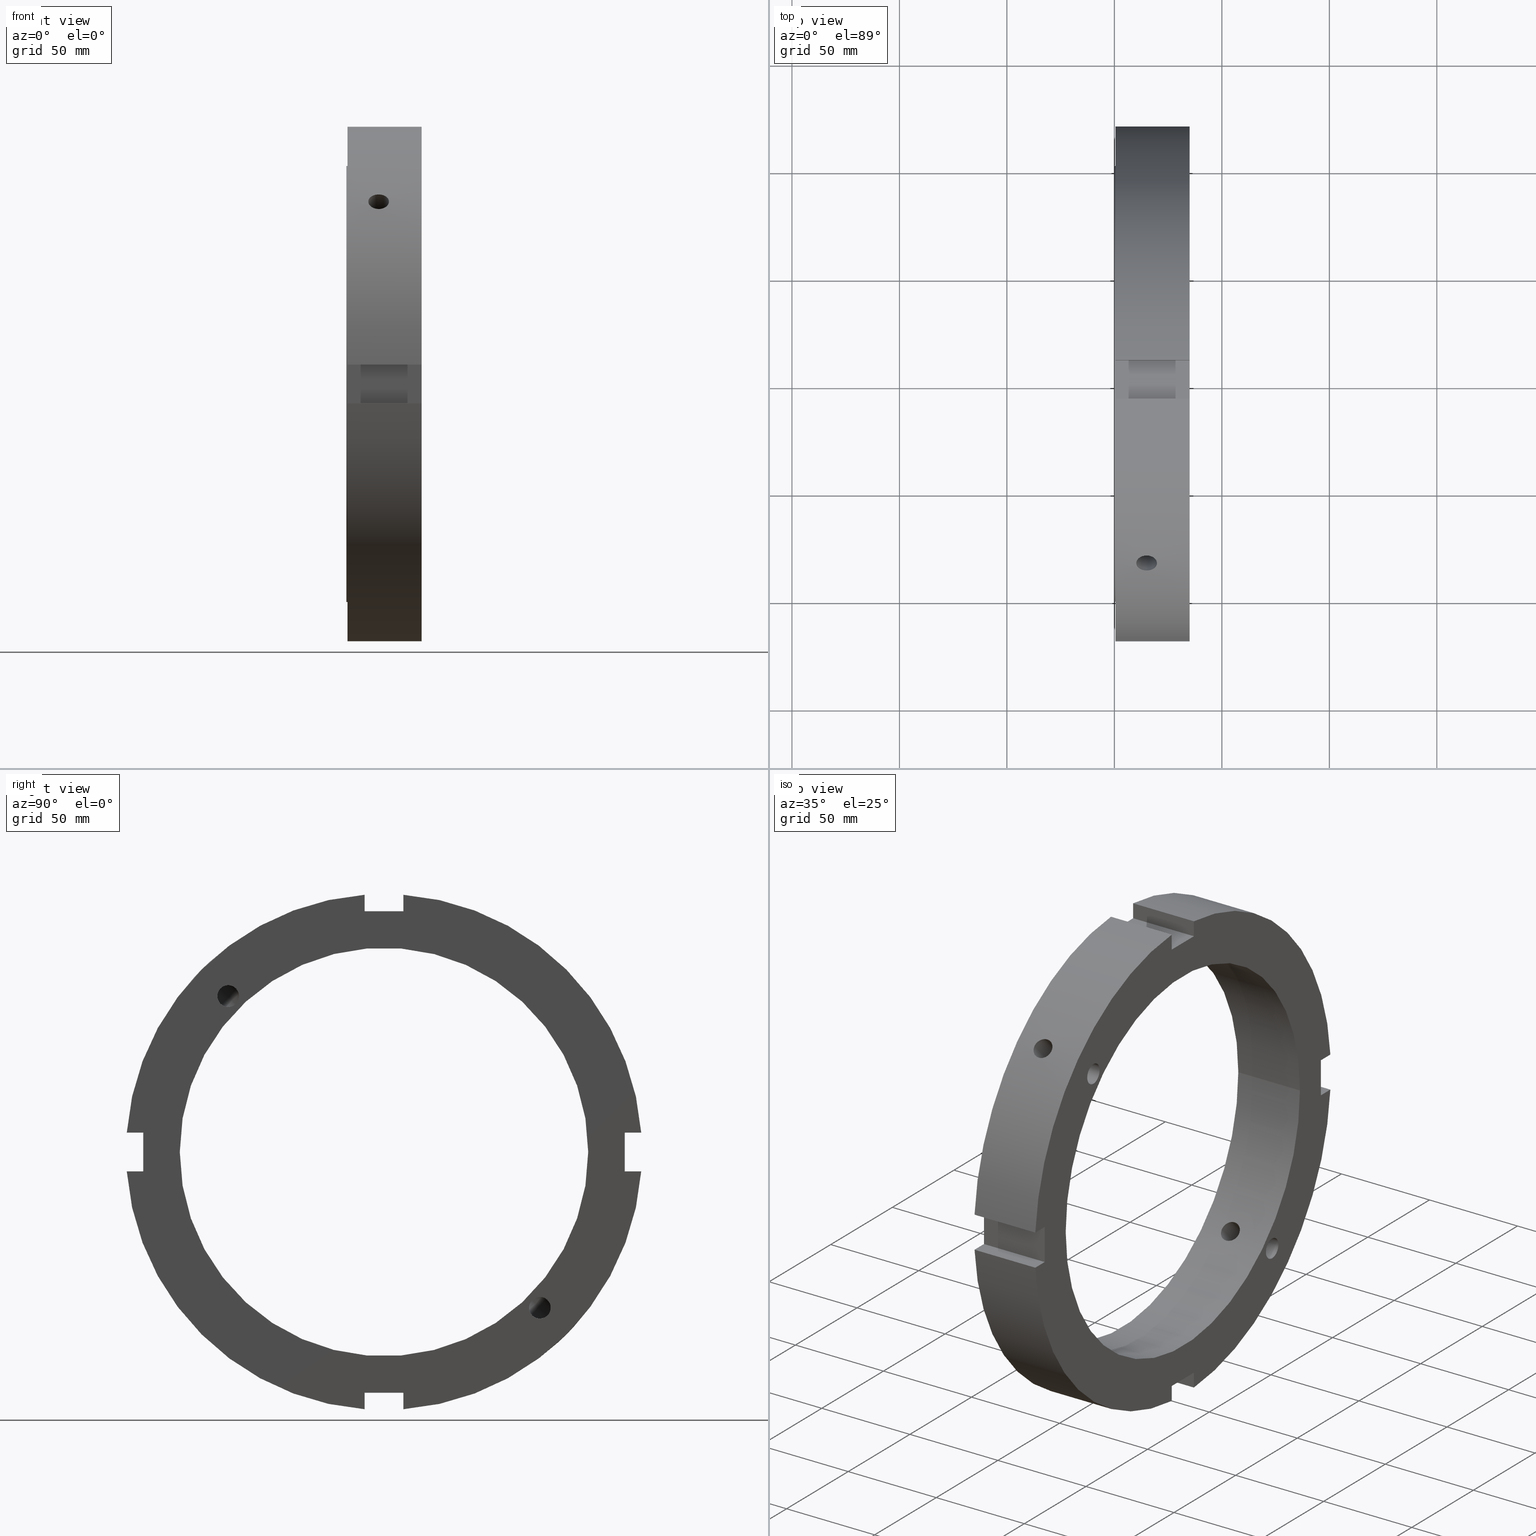
[diagram: canonical four-view strip — front | top / right | iso, engineering-drawing reading convention]
A machine part, canonical four-view strip (front | top / right | iso — engineering-drawing reading convention). The complete STEP part file that produces these views, byte-faithful:
ISO-10303-21;
HEADER;
/****************************************************************
 * Generated by software with PDElib inside                    *
 * PDElib Version v51a, created Wed 11/30/2011                  *
 * ITI Transcendata (http://www.transcendata.com/)              *
 ****************************************************************/
FILE_DESCRIPTION((''),'2;1');
FILE_NAME('C:\\Users\\sugidesign\\Documents\\Fukuda\\3Ddata\\ZMVtype\\FKD ZMV190.stp','2014-02-22T07:12:38',('sugidesign'),(''),'Autodesk Inventor LT ','Autodesk Inventor LT ','');
FILE_SCHEMA(('CONFIG_CONTROL_DESIGN'));
ENDSEC;
DATA;
#5=APPLICATION_CONTEXT('configuration controlled 3D designs of mechanical parts and assemblies');
#6=APPLICATION_PROTOCOL_DEFINITION('International Standard','ap203_configuration_controlled_3d_design_of_mechanical_parts_and_assemblies_mim_lf',2004,#5);
#7=PRODUCT_CONTEXT('',#5,'mechanical');
#8=PRODUCT('FKD ZMV190','FKD ZMV190',$,(#7));
#9=PRODUCT_RELATED_PRODUCT_CATEGORY('part',$,(#8));
#10=PRODUCT_DEFINITION_FORMATION('',$,#8);
#11=PRODUCT_DEFINITION_CONTEXT('part definition',#5,'design');
#12=PRODUCT_DEFINITION('',$,#10,#11);
#18=(NAMED_UNIT(*)PLANE_ANGLE_UNIT()SI_UNIT($,.RADIAN.));
#19=DIMENSIONAL_EXPONENTS(0.0,0.0,0.0,0.0,0.0,0.0,0.0);
#20=PLANE_ANGLE_MEASURE_WITH_UNIT(PLANE_ANGLE_MEASURE(0.0174532925),#18);
#24=(CONVERSION_BASED_UNIT('DEGREE',#20)NAMED_UNIT(#19)PLANE_ANGLE_UNIT());
#28=(NAMED_UNIT(*)SI_UNIT($,.STERADIAN.)SOLID_ANGLE_UNIT());
#32=(LENGTH_UNIT()NAMED_UNIT(*)SI_UNIT(.MILLI.,.METRE.));
#34=UNCERTAINTY_MEASURE_WITH_UNIT(LENGTH_MEASURE(0.01),#32,'DISTANCE_ACCURACY_VALUE','');
#36=(GEOMETRIC_REPRESENTATION_CONTEXT(3)GLOBAL_UNCERTAINTY_ASSIGNED_CONTEXT((#34))GLOBAL_UNIT_ASSIGNED_CONTEXT((#24,#28,#32))REPRESENTATION_CONTEXT('None','None'));
#37=AXIS2_PLACEMENT_3D('',#38,#39,#40);
#38=CARTESIAN_POINT('',(0.0,0.0,0.0));
#39=DIRECTION('',(0.0,0.0,1.0));
#40=DIRECTION('',(1.0,0.0,0.0));
#41=SHAPE_REPRESENTATION('',(#37),#36);
#42=PRODUCT_DEFINITION_SHAPE('','',#12);
#43=SHAPE_DEFINITION_REPRESENTATION(#42,#41);
#49=(NAMED_UNIT(*)PLANE_ANGLE_UNIT()SI_UNIT($,.RADIAN.));
#50=DIMENSIONAL_EXPONENTS(0.0,0.0,0.0,0.0,0.0,0.0,0.0);
#51=PLANE_ANGLE_MEASURE_WITH_UNIT(PLANE_ANGLE_MEASURE(0.0174532925),#49);
#55=(CONVERSION_BASED_UNIT('DEGREE',#51)NAMED_UNIT(#50)PLANE_ANGLE_UNIT());
#59=(NAMED_UNIT(*)SI_UNIT($,.STERADIAN.)SOLID_ANGLE_UNIT());
#63=(LENGTH_UNIT()NAMED_UNIT(*)SI_UNIT(.MILLI.,.METRE.));
#65=UNCERTAINTY_MEASURE_WITH_UNIT(LENGTH_MEASURE(0.000001),#63,'DISTANCE_ACCURACY_VALUE','');
#67=(GEOMETRIC_REPRESENTATION_CONTEXT(3)GLOBAL_UNCERTAINTY_ASSIGNED_CONTEXT((#65))GLOBAL_UNIT_ASSIGNED_CONTEXT((#55,#59,#63))REPRESENTATION_CONTEXT('','3D'));
#68=CARTESIAN_POINT('',(24.999999999999972,-72.478445071621096,72.478445071621124));
#69=DIRECTION('',(-1.0,0.0,0.0));
#70=DIRECTION('',(0.0,-1.0,0.0));
#71=AXIS2_PLACEMENT_3D('',#68,#69,#70);
#72=CYLINDRICAL_SURFACE('',#71,5.053);
#73=CARTESIAN_POINT('',(34.999999999999972,-77.531445071621093,72.478445071621124));
#74=VERTEX_POINT('',#73);
#75=CARTESIAN_POINT('',(34.999999999999972,-72.478445071621096,72.478445071621124));
#76=DIRECTION('',(-1.0,0.0,0.0));
#77=DIRECTION('',(0.0,-1.0,0.0));
#78=AXIS2_PLACEMENT_3D('',#75,#76,#77);
#79=CIRCLE('',#78,5.053);
#80=EDGE_CURVE('',#74,#74,#79,.T.);
#81=ORIENTED_EDGE('',*,*,#80,.F.);
#82=EDGE_LOOP('',(#81));
#83=FACE_OUTER_BOUND('',#82,.T.);
#84=CARTESIAN_POINT('',(14.999999999999975,-74.756132746996684,67.967907647605884));
#85=VERTEX_POINT('',#84);
#86=CARTESIAN_POINT('',(14.999999999999973,-67.96790764760614,74.756132746997309));
#87=VERTEX_POINT('',#86);
#88=CARTESIAN_POINT('',(14.999999999999975,-74.756132746996613,67.967907647605841));
#89=CARTESIAN_POINT('',(15.371394210690379,-74.756132746996613,67.967907647605841));
#90=CARTESIAN_POINT('',(15.685553977055417,-74.641239860201424,67.908456600500458));
#91=CARTESIAN_POINT('',(16.289385659561646,-74.325084360025528,67.771813771184171));
#92=CARTESIAN_POINT('',(16.576289933320783,-74.11926540624583,67.692990672056766));
#93=CARTESIAN_POINT('',(17.421279167485324,-73.413222897041251,67.488547021585276));
#94=CARTESIAN_POINT('',(17.95195347461798,-72.827620487609167,67.402313126908339));
#95=CARTESIAN_POINT('',(18.783539668158053,-71.706442274763631,67.457175387249379));
#96=CARTESIAN_POINT('',(19.149757262206272,-71.104322658969764,67.574682689901081));
#97=CARTESIAN_POINT('',(19.531498496898266,-70.227319599187567,67.943490119364213));
#98=CARTESIAN_POINT('',(19.631769033099474,-69.938832201494904,68.097705916299134));
#99=CARTESIAN_POINT('',(19.766048692575097,-69.393525842125513,68.463002079066356));
#100=CARTESIAN_POINT('',(19.799999999999976,-69.136730323946679,68.674138688624282));
#101=CARTESIAN_POINT('',(19.799999999999976,-68.674138688624254,69.136730323946708));
#102=CARTESIAN_POINT('',(19.766048692575101,-68.463002079066342,69.393525842125541));
#103=CARTESIAN_POINT('',(19.631769033099481,-68.09770591629912,69.938832201494918));
#104=CARTESIAN_POINT('',(19.53149849689828,-67.943490119364199,70.227319599187595));
#105=CARTESIAN_POINT('',(19.149757262206293,-67.574682689901067,71.104322658969764));
#106=CARTESIAN_POINT('',(18.783539668158053,-67.45717538724935,71.706442274763603));
#107=CARTESIAN_POINT('',(17.95195347461798,-67.402313126908297,72.827620487609138));
#108=CARTESIAN_POINT('',(17.421279167485302,-67.488547021585248,73.413222897041223));
#109=CARTESIAN_POINT('',(16.576289933320759,-67.692990672056723,74.119265406245816));
#110=CARTESIAN_POINT('',(16.289385659561677,-67.771813771184142,74.325084360025556));
#111=CARTESIAN_POINT('',(15.68555397705545,-67.908456600500429,74.641239860201438));
#112=CARTESIAN_POINT('',(15.371394210690383,-67.967907647605884,74.756132746996812));
#113=CARTESIAN_POINT('',(14.999999999999973,-67.967907647605884,74.756132746996812));
#114=B_SPLINE_CURVE_WITH_KNOTS('',3,(#88,#89,#90,#91,#92,#93,#94,#95,#96,#97,#98,#99,#100,#101,#102,#103,#104,#105,#106,#107,#108,#109,#110,#111,#112,#113),.UNSPECIFIED.,.F.,.U.,(4,2,2,2,2,2,2,2,2,2,2,2,4),(0.0,0.111418263207121,0.222836526414242,0.445673052828484,0.641934062182484,0.740064566859485,0.838195071536485,0.936325576213483,1.034456080890482,1.230717090244478,1.453553616658724,1.564971879865847,1.67639014307297),.UNSPECIFIED.);
#115=EDGE_CURVE('',#85,#87,#114,.T.);
#116=ORIENTED_EDGE('',*,*,#115,.F.);
#117=CARTESIAN_POINT('',(14.999999999999973,-76.988982495636037,70.20075739624491));
#118=VERTEX_POINT('',#117);
#119=CARTESIAN_POINT('',(14.999999999999973,-72.478445071621096,72.478445071621124));
#120=DIRECTION('',(-1.0,0.0,0.0));
#121=DIRECTION('',(0.0,-1.0,0.0));
#122=AXIS2_PLACEMENT_3D('',#119,#120,#121);
#123=CIRCLE('',#122,5.053);
#124=EDGE_CURVE('',#85,#118,#123,.T.);
#125=ORIENTED_EDGE('',*,*,#124,.T.);
#126=CARTESIAN_POINT('',(14.999999999999975,-70.200757396245521,76.988982495636392));
#127=VERTEX_POINT('',#126);
#128=CARTESIAN_POINT('',(14.999999999999975,-70.200757396245393,76.988982495636321));
#129=CARTESIAN_POINT('',(15.371394210690383,-70.200757396245393,76.988982495636321));
#130=CARTESIAN_POINT('',(15.685553977055413,-70.31565028304081,77.048433542741805));
#131=CARTESIAN_POINT('',(16.28938565956166,-70.631805783216691,77.185076372058091));
#132=CARTESIAN_POINT('',(16.576289933320801,-70.837624736996375,77.263899471185496));
#133=CARTESIAN_POINT('',(17.421279167485345,-71.543667246200982,77.468343121656972));
#134=CARTESIAN_POINT('',(17.95195347461798,-72.129269655633067,77.554577016333909));
#135=CARTESIAN_POINT('',(18.783539668158053,-73.250447868478616,77.499714755992841));
#136=CARTESIAN_POINT('',(19.149757262206293,-73.85256748427247,77.382207453341152));
#137=CARTESIAN_POINT('',(19.53149849689828,-74.729570544054624,77.01340002387802));
#138=CARTESIAN_POINT('',(19.631769033099481,-75.018057941747301,76.8591842269431));
#139=CARTESIAN_POINT('',(19.766048692575101,-75.563364301116678,76.493888064175877));
#140=CARTESIAN_POINT('',(19.799999999999979,-75.820159819295498,76.282751454617966));
#141=CARTESIAN_POINT('',(19.799999999999976,-76.282751454617937,75.820159819295526));
#142=CARTESIAN_POINT('',(19.766048692575101,-76.493888064175849,75.563364301116692));
#143=CARTESIAN_POINT('',(19.631769033099474,-76.859184226943071,75.01805794174733));
#144=CARTESIAN_POINT('',(19.531498496898273,-77.013400023878006,74.729570544054639));
#145=CARTESIAN_POINT('',(19.149757262206283,-77.382207453341124,73.85256748427247));
#146=CARTESIAN_POINT('',(18.783539668158053,-77.499714755992827,73.250447868478574));
#147=CARTESIAN_POINT('',(17.95195347461798,-77.55457701633388,72.129269655633038));
#148=CARTESIAN_POINT('',(17.421279167485302,-77.468343121656929,71.543667246200982));
#149=CARTESIAN_POINT('',(16.576289933320759,-77.263899471185468,70.837624736996389));
#150=CARTESIAN_POINT('',(16.289385659561631,-77.185076372058063,70.631805783216706));
#151=CARTESIAN_POINT('',(15.685553977055413,-77.048433542741776,70.315650283040839));
#152=CARTESIAN_POINT('',(15.371394210690376,-76.988982495636392,70.200757396245606));
#153=CARTESIAN_POINT('',(14.999999999999973,-76.988982495636392,70.200757396245606));
#154=B_SPLINE_CURVE_WITH_KNOTS('',3,(#128,#129,#130,#131,#132,#133,#134,#135,#136,#137,#138,#139,#140,#141,#142,#143,#144,#145,#146,#147,#148,#149,#150,#151,#152,#153),.UNSPECIFIED.,.F.,.U.,(4,2,2,2,2,2,2,2,2,2,2,2,4),(-1.67639014307297,-1.564971879865847,-1.453553616658724,-1.230717090244478,-1.034456080890481,-0.936325576213482,-0.838195071536484,-0.740064566859484,-0.641934062182484,-0.445673052828484,-0.222836526414242,-0.111418263207121,0.0),.UNSPECIFIED.);
#155=EDGE_CURVE('',#127,#118,#154,.T.);
#156=ORIENTED_EDGE('',*,*,#155,.F.);
#157=CARTESIAN_POINT('',(14.999999999999973,-72.478445071621096,72.478445071621124));
#158=DIRECTION('',(-1.0,0.0,0.0));
#159=DIRECTION('',(0.0,-1.0,0.0));
#160=AXIS2_PLACEMENT_3D('',#157,#158,#159);
#161=CIRCLE('',#160,5.053);
#162=EDGE_CURVE('',#127,#87,#161,.T.);
#163=ORIENTED_EDGE('',*,*,#162,.T.);
#164=EDGE_LOOP('',(#116,#125,#156,#163));
#165=FACE_BOUND('',#164,.T.);
#166=ADVANCED_FACE('',(#83,#165),#72,.F.);
#167=CARTESIAN_POINT('',(13.481925646026841,-72.478445071621096,72.478445071621124));
#168=DIRECTION('',(1.0,0.0,0.0));
#169=DIRECTION('',(0.0,-1.0,0.0));
#170=AXIS2_PLACEMENT_3D('',#167,#168,#169);
#171=CONICAL_SURFACE('',#170,2.5265,59.000000000000007);
#172=CARTESIAN_POINT('',(14.999999999999842,-76.988982495635881,70.200757396245109));
#173=CARTESIAN_POINT('',(14.89986692847053,-76.611850312048489,69.823625212657717));
#174=CARTESIAN_POINT('',(14.846507273038284,-76.235218464374256,69.450464971023166));
#175=CARTESIAN_POINT('',(14.846507273038283,-75.870821818296662,69.086068324945572));
#176=CARTESIAN_POINT('',(14.846507273038281,-75.511648777958428,68.726895284607352));
#177=CARTESIAN_POINT('',(14.899224632065513,-75.1356840179252,68.347458918534429));
#178=CARTESIAN_POINT('',(14.999999999999961,-74.756132746996656,67.967907647605884));
#179=B_SPLINE_CURVE_WITH_KNOTS('',3,(#172,#173,#174,#175,#176,#177,#178),.UNSPECIFIED.,.F.,.U.,(4,3,4),(-0.154600403689856,0.0,0.152384215465531),.UNSPECIFIED.);
#180=EDGE_CURVE('',#118,#85,#179,.T.);
#181=ORIENTED_EDGE('',*,*,#180,.F.);
#182=ORIENTED_EDGE('',*,*,#124,.F.);
#183=EDGE_LOOP('',(#181,#182));
#184=FACE_OUTER_BOUND('',#183,.T.);
#185=ADVANCED_FACE('',(#184),#171,.F.);
#186=CARTESIAN_POINT('',(13.481925646026841,-72.478445071621096,72.478445071621124));
#187=DIRECTION('',(1.0,0.0,0.0));
#188=DIRECTION('',(0.0,-1.0,0.0));
#189=AXIS2_PLACEMENT_3D('',#186,#187,#188);
#190=CONICAL_SURFACE('',#189,2.5265,59.000000000000007);
#191=CARTESIAN_POINT('',(14.999999999999883,-67.967907647606253,74.756132746997181));
#192=CARTESIAN_POINT('',(14.899224632065511,-68.347458918534642,75.135684017925556));
#193=CARTESIAN_POINT('',(14.84650727303829,-68.726895284607451,75.51164877795857));
#194=CARTESIAN_POINT('',(14.84650727303829,-69.450464971023266,76.235218464374398));
#195=CARTESIAN_POINT('',(14.899866928470617,-69.82362521265793,76.611850312048873));
#196=CARTESIAN_POINT('',(15.000000000000007,-70.200757396245479,76.988982495636421));
#197=B_SPLINE_CURVE_WITH_KNOTS('',3,(#191,#192,#193,#194,#195,#196),.UNSPECIFIED.,.F.,.U.,(4,2,4),(2.859821891611266,3.012206107076736,3.166806510766657),.UNSPECIFIED.);
#198=EDGE_CURVE('',#87,#127,#197,.T.);
#199=ORIENTED_EDGE('',*,*,#198,.F.);
#200=ORIENTED_EDGE('',*,*,#162,.F.);
#201=EDGE_LOOP('',(#199,#200));
#202=FACE_OUTER_BOUND('',#201,.T.);
#203=ADVANCED_FACE('',(#202),#190,.F.);
#204=CARTESIAN_POINT('',(14.999999999999979,-240.60029093914241,240.60029093914252));
#205=DIRECTION('',(0.0,-0.707106781186547,0.707106781186548));
#206=DIRECTION('',(1.0,0.0,0.0));
#207=AXIS2_PLACEMENT_3D('',#204,#205,#206);
#208=CYLINDRICAL_SURFACE('',#207,4.8);
#209=CARTESIAN_POINT('',(14.999999999999979,-88.179016866442751,81.390791767051923));
#210=VERTEX_POINT('',#209);
#211=CARTESIAN_POINT('',(14.999999999999973,-88.179016866442709,81.390791767051937));
#212=CARTESIAN_POINT('',(14.397232294298865,-88.179016866442709,81.390791767051937));
#213=CARTESIAN_POINT('',(13.754331162381014,-88.097371758701186,81.479526055841177));
#214=CARTESIAN_POINT('',(12.571729384587954,-87.763785764621929,81.838731571886768));
#215=CARTESIAN_POINT('',(12.032023295615343,-87.511663243833127,82.109016151981322));
#216=CARTESIAN_POINT('',(11.179751641834553,-86.926068433374127,82.728715473125263));
#217=CARTESIAN_POINT('',(10.810354011718214,-86.553516444916482,83.119423179810411));
#218=CARTESIAN_POINT('',(10.320476410953972,-85.730093183496876,83.968451465253139));
#219=CARTESIAN_POINT('',(10.199999999999978,-85.27903483771901,84.426592647052402));
#220=CARTESIAN_POINT('',(10.199999999999978,-84.426592647052303,85.279034837719081));
#221=CARTESIAN_POINT('',(10.320476410953969,-83.968451465253068,85.730093183496933));
#222=CARTESIAN_POINT('',(10.8103540117182,-83.11942317981034,86.553516444916568));
#223=CARTESIAN_POINT('',(11.17975164183456,-82.728715473125192,86.926068433374155));
#224=CARTESIAN_POINT('',(12.032023295615343,-82.109016151981251,87.511663243833169));
#225=CARTESIAN_POINT('',(12.571729384587947,-81.838731571886697,87.763785764622));
#226=CARTESIAN_POINT('',(13.754331162381012,-81.479526055841106,88.097371758701257));
#227=CARTESIAN_POINT('',(14.397232294298865,-81.390791767051866,88.179016866442794));
#228=CARTESIAN_POINT('',(15.602767705701089,-81.390791767051866,88.179016866442794));
#229=CARTESIAN_POINT('',(16.24566883761894,-81.479526055841106,88.097371758701257));
#230=CARTESIAN_POINT('',(17.428270615412007,-81.838731571886697,87.763785764622));
#231=CARTESIAN_POINT('',(17.967976704384615,-82.109016151981251,87.511663243833169));
#232=CARTESIAN_POINT('',(18.820248358165401,-82.728715473125192,86.926068433374184));
#233=CARTESIAN_POINT('',(19.189645988281757,-83.11942317981034,86.553516444916568));
#234=CARTESIAN_POINT('',(19.679523589045992,-83.968451465253054,85.730093183496962));
#235=CARTESIAN_POINT('',(19.799999999999976,-84.426592647052303,85.279034837719095));
#236=CARTESIAN_POINT('',(19.799999999999976,-85.27903483771901,84.426592647052416));
#237=CARTESIAN_POINT('',(19.679523589045992,-85.730093183496848,83.968451465253153));
#238=CARTESIAN_POINT('',(19.189645988281757,-86.553516444916454,83.119423179810425));
#239=CARTESIAN_POINT('',(18.820248358165394,-86.926068433374098,82.728715473125305));
#240=CARTESIAN_POINT('',(17.967976704384615,-87.511663243833084,82.109016151981336));
#241=CARTESIAN_POINT('',(17.428270615412004,-87.763785764621943,81.838731571886782));
#242=CARTESIAN_POINT('',(16.24566883761894,-88.0973717587012,81.479526055841205));
#243=CARTESIAN_POINT('',(15.602767705701092,-88.179016866442709,81.390791767051937));
#244=CARTESIAN_POINT('',(14.999999999999979,-88.179016866442709,81.390791767051937));
#245=B_SPLINE_CURVE_WITH_KNOTS('',3,(#211,#212,#213,#214,#215,#216,#217,#218,#219,#220,#221,#222,#223,#224,#225,#226,#227,#228,#229,#230,#231,#232,#233,#234,#235,#236,#237,#238,#239,#240,#241,#242,#243,#244),.UNSPECIFIED.,.T.,.U.,(4,2,2,2,2,2,2,2,2,2,2,2,2,2,2,2,4),(0.0,0.180830311710333,0.361660623420666,0.542490919497648,0.72332121557463,0.90415151165161,1.084981807728589,1.265812119438923,1.446642431149256,1.627472742859589,1.808303054569923,1.989133350646903,2.169963646723883,2.350793942800864,2.531624238877843,2.712454550588177,2.893284862298511),.UNSPECIFIED.);
#246=EDGE_CURVE('',#210,#210,#245,.T.);
#247=ORIENTED_EDGE('',*,*,#246,.F.);
#248=EDGE_LOOP('',(#247));
#249=FACE_OUTER_BOUND('',#248,.T.);
#250=ORIENTED_EDGE('',*,*,#180,.T.);
#251=ORIENTED_EDGE('',*,*,#115,.T.);
#252=ORIENTED_EDGE('',*,*,#198,.T.);
#253=ORIENTED_EDGE('',*,*,#155,.T.);
#254=EDGE_LOOP('',(#250,#251,#252,#253));
#255=FACE_BOUND('',#254,.T.);
#256=CARTESIAN_POINT('',(14.999999999999979,-70.483455965770062,63.695230866379255));
#257=VERTEX_POINT('',#256);
#258=CARTESIAN_POINT('',(14.999999999999979,-70.483455965770048,63.695230866379269));
#259=CARTESIAN_POINT('',(15.60280886897484,-70.483455965770048,63.695230866379269));
#260=CARTESIAN_POINT('',(16.245727713137242,-70.402735111982068,63.784912148055348));
#261=CARTESIAN_POINT('',(17.428318149963072,-70.072518583995603,64.147503990508682));
#262=CARTESIAN_POINT('',(17.967998441527296,-69.822793832356126,64.420177481466368));
#263=CARTESIAN_POINT('',(18.820226563994112,-69.241721275644636,65.044337493783232));
#264=CARTESIAN_POINT('',(19.189617973987897,-68.871577627804783,65.437417094174918));
#265=CARTESIAN_POINT('',(19.679507531872932,-68.051532852517468,66.289807944514266));
#266=CARTESIAN_POINT('',(19.799999999999983,-67.601394357834096,66.748894067609939));
#267=CARTESIAN_POINT('',(19.799999999999972,-66.748894067609839,67.601394357834167));
#268=CARTESIAN_POINT('',(19.679507531872925,-66.289807944514195,68.051532852517553));
#269=CARTESIAN_POINT('',(19.189617973987886,-65.437417094174819,68.871577627804882));
#270=CARTESIAN_POINT('',(18.820226563994108,-65.044337493783146,69.241721275644721));
#271=CARTESIAN_POINT('',(17.967998441527293,-64.420177481466283,69.822793832356197));
#272=CARTESIAN_POINT('',(17.428318149963069,-64.147503990508611,70.072518583995674));
#273=CARTESIAN_POINT('',(16.245727713137242,-63.784912148055277,70.402735111982139));
#274=CARTESIAN_POINT('',(15.60280886897484,-63.695230866379191,70.483455965770119));
#275=CARTESIAN_POINT('',(14.397191131025121,-63.695230866379191,70.483455965770119));
#276=CARTESIAN_POINT('',(13.754272286862717,-63.784912148055277,70.402735111982139));
#277=CARTESIAN_POINT('',(12.571681850036896,-64.147503990508611,70.072518583995674));
#278=CARTESIAN_POINT('',(12.032001558472667,-64.420177481466268,69.822793832356211));
#279=CARTESIAN_POINT('',(11.179773436005842,-65.044337493783132,69.241721275644736));
#280=CARTESIAN_POINT('',(10.810382026012073,-65.437417094174819,68.871577627804882));
#281=CARTESIAN_POINT('',(10.320492468127027,-66.289807944514195,68.051532852517539));
#282=CARTESIAN_POINT('',(10.199999999999982,-66.748894067609839,67.601394357834167));
#283=CARTESIAN_POINT('',(10.199999999999974,-67.601394357834096,66.748894067609939));
#284=CARTESIAN_POINT('',(10.320492468127023,-68.051532852517468,66.289807944514266));
#285=CARTESIAN_POINT('',(10.810382026012061,-68.871577627804783,65.437417094174904));
#286=CARTESIAN_POINT('',(11.179773436005844,-69.241721275644636,65.044337493783232));
#287=CARTESIAN_POINT('',(12.032001558472661,-69.822793832356126,64.420177481466368));
#288=CARTESIAN_POINT('',(12.571681850036882,-70.072518583995603,64.147503990508682));
#289=CARTESIAN_POINT('',(13.754272286862715,-70.402735111982068,63.784912148055348));
#290=CARTESIAN_POINT('',(14.397191131025115,-70.483455965770048,63.695230866379269));
#291=CARTESIAN_POINT('',(14.999999999999979,-70.483455965770048,63.695230866379269));
#292=B_SPLINE_CURVE_WITH_KNOTS('',3,(#258,#259,#260,#261,#262,#263,#264,#265,#266,#267,#268,#269,#270,#271,#272,#273,#274,#275,#276,#277,#278,#279,#280,#281,#282,#283,#284,#285,#286,#287,#288,#289,#290,#291),.UNSPECIFIED.,.T.,.U.,(4,2,2,2,2,2,2,2,2,2,2,2,2,2,2,2,4),(0.0,0.180842660692459,0.361685321384918,0.542527942239237,0.723370563093557,0.904213183947876,1.085055804802195,1.265898465494653,1.446741126187112,1.627583786879569,1.808426447572027,1.989269068426347,2.170111689280668,2.350954310134987,2.531796930989306,2.712639591681765,2.893482252374224),.UNSPECIFIED.);
#293=EDGE_CURVE('',#257,#257,#292,.T.);
#294=ORIENTED_EDGE('',*,*,#293,.F.);
#295=EDGE_LOOP('',(#294));
#296=FACE_BOUND('',#295,.T.);
#297=ADVANCED_FACE('',(#249,#255,#296),#208,.F.);
#298=CARTESIAN_POINT('',(13.481925646026841,72.47844507162111,-72.47844507162111));
#299=DIRECTION('',(1.0,0.0,0.0));
#300=DIRECTION('',(0.0,0.0,-1.0));
#301=AXIS2_PLACEMENT_3D('',#298,#299,#300);
#302=CONICAL_SURFACE('',#301,2.5265,59.000000000000007);
#303=CARTESIAN_POINT('',(14.999999999999975,67.967907647605855,-74.756132746996698));
#304=VERTEX_POINT('',#303);
#305=CARTESIAN_POINT('',(14.999999999999973,70.200757396244896,-76.988982495636051));
#306=VERTEX_POINT('',#305);
#307=CARTESIAN_POINT('',(14.999999999999979,67.967907647605841,-74.756132746996713));
#308=CARTESIAN_POINT('',(14.899224633106655,68.347458914613185,-75.135684014004042));
#309=CARTESIAN_POINT('',(14.846507273038279,68.726895288266306,-75.511648781617438));
#310=CARTESIAN_POINT('',(14.846507273038283,69.086068324945558,-75.87082181829669));
#311=CARTESIAN_POINT('',(14.846507273038284,69.450464971023138,-76.235218464374256));
#312=CARTESIAN_POINT('',(14.899866928470553,69.823625212657646,-76.611850312048531));
#313=CARTESIAN_POINT('',(14.999999999999861,70.200757396245038,-76.988982495635923));
#314=B_SPLINE_CURVE_WITH_KNOTS('',3,(#307,#308,#309,#310,#311,#312,#313),.UNSPECIFIED.,.F.,.U.,(4,3,4),(-0.152384213913154,0.0,0.154600403689854),.UNSPECIFIED.);
#315=EDGE_CURVE('',#304,#306,#314,.T.);
#316=ORIENTED_EDGE('',*,*,#315,.F.);
#317=CARTESIAN_POINT('',(14.999999999999973,72.47844507162111,-72.47844507162111));
#318=DIRECTION('',(1.0,0.0,0.0));
#319=DIRECTION('',(0.0,0.0,-1.0));
#320=AXIS2_PLACEMENT_3D('',#317,#318,#319);
#321=CIRCLE('',#320,5.053);
#322=EDGE_CURVE('',#304,#306,#321,.T.);
#323=ORIENTED_EDGE('',*,*,#322,.T.);
#324=EDGE_LOOP('',(#316,#323));
#325=FACE_OUTER_BOUND('',#324,.T.);
#326=ADVANCED_FACE('',(#325),#302,.F.);
#327=CARTESIAN_POINT('',(13.481925646026841,72.47844507162111,-72.47844507162111));
#328=DIRECTION('',(1.0,0.0,0.0));
#329=DIRECTION('',(0.0,0.0,-1.0));
#330=AXIS2_PLACEMENT_3D('',#327,#328,#329);
#331=CONICAL_SURFACE('',#330,2.5265,59.000000000000007);
#332=CARTESIAN_POINT('',(14.999999999999975,76.988982495636378,-70.200757396245535));
#333=VERTEX_POINT('',#332);
#334=CARTESIAN_POINT('',(14.999999999999973,74.756132746997295,-67.967907647606168));
#335=VERTEX_POINT('',#334);
#336=CARTESIAN_POINT('',(14.999999999999984,76.988982495636378,-70.200757396245535));
#337=CARTESIAN_POINT('',(14.899866928470596,76.611850312048816,-69.823625212657973));
#338=CARTESIAN_POINT('',(14.84650727303829,76.235218464374384,-69.45046497102328));
#339=CARTESIAN_POINT('',(14.84650727303829,75.51164877795857,-68.72689528460748));
#340=CARTESIAN_POINT('',(14.899224632065486,75.135684017925556,-68.347458918534699));
#341=CARTESIAN_POINT('',(14.999999999999865,74.756132746997139,-67.967907647606296));
#342=B_SPLINE_CURVE_WITH_KNOTS('',3,(#336,#337,#338,#339,#340,#341),.UNSPECIFIED.,.F.,.U.,(4,2,4),(2.893006925034579,3.047607328724498,3.199991544189966),.UNSPECIFIED.);
#343=EDGE_CURVE('',#333,#335,#342,.T.);
#344=ORIENTED_EDGE('',*,*,#343,.F.);
#345=CARTESIAN_POINT('',(14.999999999999973,72.47844507162111,-72.47844507162111));
#346=DIRECTION('',(1.0,0.0,0.0));
#347=DIRECTION('',(0.0,0.0,-1.0));
#348=AXIS2_PLACEMENT_3D('',#345,#346,#347);
#349=CIRCLE('',#348,5.053);
#350=EDGE_CURVE('',#333,#335,#349,.T.);
#351=ORIENTED_EDGE('',*,*,#350,.T.);
#352=EDGE_LOOP('',(#344,#351));
#353=FACE_OUTER_BOUND('',#352,.T.);
#354=ADVANCED_FACE('',(#353),#331,.F.);
#355=CARTESIAN_POINT('',(24.999999999999972,72.47844507162111,-72.47844507162111));
#356=DIRECTION('',(1.0,0.0,0.0));
#357=DIRECTION('',(0.0,0.0,-1.0));
#358=AXIS2_PLACEMENT_3D('',#355,#356,#357);
#359=CYLINDRICAL_SURFACE('',#358,5.053);
#360=CARTESIAN_POINT('',(14.999999999999979,70.200757396245507,-76.988982495636364));
#361=CARTESIAN_POINT('',(15.371394210690381,70.200757396245507,-76.988982495636364));
#362=CARTESIAN_POINT('',(15.685553977055413,70.31565028304081,-77.04843354274179));
#363=CARTESIAN_POINT('',(16.289385659561631,70.631805783216691,-77.185076372058077));
#364=CARTESIAN_POINT('',(16.576289933320759,70.837624736996375,-77.263899471185482));
#365=CARTESIAN_POINT('',(17.421279167485302,71.543667246200968,-77.468343121656943));
#366=CARTESIAN_POINT('',(17.95195347461798,72.12926965563301,-77.554577016333894));
#367=CARTESIAN_POINT('',(18.783539668158053,73.25044786847856,-77.499714755992841));
#368=CARTESIAN_POINT('',(19.149757262206286,73.852567484272427,-77.382207453341152));
#369=CARTESIAN_POINT('',(19.531498496898276,74.72957054405461,-77.01340002387802));
#370=CARTESIAN_POINT('',(19.631769033099474,75.018057941747301,-76.859184226943086));
#371=CARTESIAN_POINT('',(19.766048692575101,75.563364301116678,-76.493888064175877));
#372=CARTESIAN_POINT('',(19.799999999999976,75.820159819295512,-76.282751454617951));
#373=CARTESIAN_POINT('',(19.799999999999979,76.282751454617937,-75.820159819295526));
#374=CARTESIAN_POINT('',(19.766048692575101,76.493888064175863,-75.563364301116692));
#375=CARTESIAN_POINT('',(19.631769033099481,76.859184226943086,-75.018057941747315));
#376=CARTESIAN_POINT('',(19.53149849689828,77.013400023878006,-74.729570544054639));
#377=CARTESIAN_POINT('',(19.149757262206293,77.382207453341138,-73.852567484272484));
#378=CARTESIAN_POINT('',(18.783539668158053,77.499714755992827,-73.250447868478631));
#379=CARTESIAN_POINT('',(17.95195347461798,77.554577016333894,-72.129269655633095));
#380=CARTESIAN_POINT('',(17.421279167485345,77.468343121656943,-71.543667246201011));
#381=CARTESIAN_POINT('',(16.576289933320801,77.263899471185468,-70.837624736996389));
#382=CARTESIAN_POINT('',(16.289385659561656,77.185076372058063,-70.63180578321672));
#383=CARTESIAN_POINT('',(15.68555397705541,77.048433542741776,-70.315650283040839));
#384=CARTESIAN_POINT('',(15.371394210690386,76.988982495636336,-70.200757396245479));
#385=CARTESIAN_POINT('',(14.999999999999979,76.988982495636336,-70.200757396245479));
#386=B_SPLINE_CURVE_WITH_KNOTS('',3,(#360,#361,#362,#363,#364,#365,#366,#367,#368,#369,#370,#371,#372,#373,#374,#375,#376,#377,#378,#379,#380,#381,#382,#383,#384,#385),.UNSPECIFIED.,.F.,.U.,(4,2,2,2,2,2,2,2,2,2,2,2,4),(0.0,0.111418263207121,0.222836526414242,0.445673052828484,0.641934062182484,0.740064566859485,0.838195071536485,0.936325576213483,1.034456080890482,1.230717090244478,1.453553616658724,1.564971879865847,1.67639014307297),.UNSPECIFIED.);
#387=EDGE_CURVE('',#306,#333,#386,.T.);
#388=ORIENTED_EDGE('',*,*,#387,.F.);
#389=ORIENTED_EDGE('',*,*,#322,.F.);
#390=CARTESIAN_POINT('',(14.999999999999979,74.756132746996741,-67.967907647605884));
#391=CARTESIAN_POINT('',(15.371394210690386,74.756132746996741,-67.967907647605884));
#392=CARTESIAN_POINT('',(15.685553977055445,74.641239860201424,-67.908456600500443));
#393=CARTESIAN_POINT('',(16.289385659561674,74.325084360025542,-67.771813771184156));
#394=CARTESIAN_POINT('',(16.576289933320759,74.119265406245788,-67.692990672056737));
#395=CARTESIAN_POINT('',(17.421279167485302,73.413222897041209,-67.488547021585262));
#396=CARTESIAN_POINT('',(17.95195347461798,72.827620487609124,-67.402313126908325));
#397=CARTESIAN_POINT('',(18.783539668158053,71.706442274763589,-67.457175387249379));
#398=CARTESIAN_POINT('',(19.149757262206293,71.104322658969735,-67.574682689901081));
#399=CARTESIAN_POINT('',(19.53149849689828,70.227319599187567,-67.943490119364213));
#400=CARTESIAN_POINT('',(19.631769033099481,69.938832201494876,-68.097705916299134));
#401=CARTESIAN_POINT('',(19.766048692575097,69.393525842125527,-68.463002079066342));
#402=CARTESIAN_POINT('',(19.799999999999976,69.136730323946693,-68.674138688624268));
#403=CARTESIAN_POINT('',(19.799999999999976,68.674138688624268,-69.136730323946708));
#404=CARTESIAN_POINT('',(19.766048692575097,68.463002079066342,-69.393525842125541));
#405=CARTESIAN_POINT('',(19.631769033099474,68.09770591629912,-69.938832201494918));
#406=CARTESIAN_POINT('',(19.531498496898266,67.943490119364199,-70.227319599187595));
#407=CARTESIAN_POINT('',(19.149757262206268,67.574682689901067,-71.104322658969778));
#408=CARTESIAN_POINT('',(18.783539668158056,67.45717538724935,-71.70644227476366));
#409=CARTESIAN_POINT('',(17.95195347461798,67.402313126908325,-72.827620487609181));
#410=CARTESIAN_POINT('',(17.421279167485324,67.488547021585262,-73.413222897041265));
#411=CARTESIAN_POINT('',(16.576289933320783,67.692990672056737,-74.119265406245844));
#412=CARTESIAN_POINT('',(16.289385659561646,67.771813771184156,-74.325084360025542));
#413=CARTESIAN_POINT('',(15.685553977055417,67.908456600500443,-74.641239860201438));
#414=CARTESIAN_POINT('',(15.371394210690381,67.967907647605855,-74.756132746996698));
#415=CARTESIAN_POINT('',(14.999999999999979,67.967907647605855,-74.756132746996698));
#416=B_SPLINE_CURVE_WITH_KNOTS('',3,(#390,#391,#392,#393,#394,#395,#396,#397,#398,#399,#400,#401,#402,#403,#404,#405,#406,#407,#408,#409,#410,#411,#412,#413,#414,#415),.UNSPECIFIED.,.F.,.U.,(4,2,2,2,2,2,2,2,2,2,2,2,4),(-1.67639014307297,-1.564971879865847,-1.453553616658724,-1.230717090244478,-1.034456080890482,-0.936325576213483,-0.838195071536485,-0.740064566859485,-0.641934062182485,-0.445673052828484,-0.222836526414242,-0.111418263207121,0.0),.UNSPECIFIED.);
#417=EDGE_CURVE('',#335,#304,#416,.T.);
#418=ORIENTED_EDGE('',*,*,#417,.F.);
#419=ORIENTED_EDGE('',*,*,#350,.F.);
#420=EDGE_LOOP('',(#388,#389,#418,#419));
#421=FACE_OUTER_BOUND('',#420,.T.);
#422=CARTESIAN_POINT('',(34.999999999999972,72.47844507162111,-77.531445071621107));
#423=VERTEX_POINT('',#422);
#424=CARTESIAN_POINT('',(34.999999999999972,72.47844507162111,-72.47844507162111));
#425=DIRECTION('',(-1.0,0.0,0.0));
#426=DIRECTION('',(0.0,0.0,-1.0));
#427=AXIS2_PLACEMENT_3D('',#424,#425,#426);
#428=CIRCLE('',#427,5.053);
#429=EDGE_CURVE('',#423,#423,#428,.T.);
#430=ORIENTED_EDGE('',*,*,#429,.F.);
#431=EDGE_LOOP('',(#430));
#432=FACE_BOUND('',#431,.T.);
#433=ADVANCED_FACE('',(#421,#432),#359,.F.);
#434=CARTESIAN_POINT('',(14.999999999999979,240.60029093914244,-240.6002909391425));
#435=DIRECTION('',(0.0,-0.707106781186547,0.707106781186548));
#436=DIRECTION('',(1.0,0.0,0.0));
#437=AXIS2_PLACEMENT_3D('',#434,#435,#436);
#438=CYLINDRICAL_SURFACE('',#437,4.8);
#439=CARTESIAN_POINT('',(14.999999999999979,81.390791767051894,-88.179016866442765));
#440=VERTEX_POINT('',#439);
#441=CARTESIAN_POINT('',(14.99999999999998,81.390791767051894,-88.179016866442765));
#442=CARTESIAN_POINT('',(15.602767705701092,81.390791767051894,-88.179016866442765));
#443=CARTESIAN_POINT('',(16.245668837618933,81.479526055841163,-88.097371758701243));
#444=CARTESIAN_POINT('',(17.428270615412004,81.83873157188674,-87.763785764621986));
#445=CARTESIAN_POINT('',(17.967976704384615,82.109016151981308,-87.511663243833169));
#446=CARTESIAN_POINT('',(18.820248358165401,82.728715473125263,-86.926068433374184));
#447=CARTESIAN_POINT('',(19.189645988281757,83.119423179810369,-86.553516444916511));
#448=CARTESIAN_POINT('',(19.679523589045981,83.968451465253082,-85.730093183496919));
#449=CARTESIAN_POINT('',(19.799999999999976,84.426592647052345,-85.279034837719067));
#450=CARTESIAN_POINT('',(19.799999999999976,85.279034837719053,-84.42659264705236));
#451=CARTESIAN_POINT('',(19.679523589045981,85.730093183496919,-83.968451465253096));
#452=CARTESIAN_POINT('',(19.189645988281743,86.553516444916525,-83.119423179810369));
#453=CARTESIAN_POINT('',(18.820248358165404,86.926068433374155,-82.72871547312522));
#454=CARTESIAN_POINT('',(17.967976704384615,87.511663243833127,-82.10901615198128));
#455=CARTESIAN_POINT('',(17.428270615412004,87.763785764621986,-81.83873157188674));
#456=CARTESIAN_POINT('',(16.24566883761894,88.097371758701243,-81.479526055841163));
#457=CARTESIAN_POINT('',(15.602767705701089,88.179016866442765,-81.390791767051894));
#458=CARTESIAN_POINT('',(14.397232294298867,88.179016866442765,-81.390791767051894));
#459=CARTESIAN_POINT('',(13.754331162381018,88.097371758701243,-81.479526055841163));
#460=CARTESIAN_POINT('',(12.57172938458795,87.763785764621986,-81.83873157188674));
#461=CARTESIAN_POINT('',(12.032023295615343,87.511663243833127,-82.10901615198128));
#462=CARTESIAN_POINT('',(11.179751641834553,86.926068433374155,-82.72871547312522));
#463=CARTESIAN_POINT('',(10.810354011718212,86.553516444916525,-83.119423179810369));
#464=CARTESIAN_POINT('',(10.320476410953974,85.730093183496919,-83.968451465253096));
#465=CARTESIAN_POINT('',(10.199999999999978,85.279034837719053,-84.42659264705236));
#466=CARTESIAN_POINT('',(10.199999999999978,84.426592647052345,-85.279034837719053));
#467=CARTESIAN_POINT('',(10.320476410953969,83.968451465253096,-85.730093183496905));
#468=CARTESIAN_POINT('',(10.810354011718191,83.119423179810411,-86.553516444916482));
#469=CARTESIAN_POINT('',(11.179751641834565,82.728715473125263,-86.926068433374127));
#470=CARTESIAN_POINT('',(12.032023295615343,82.109016151981308,-87.511663243833127));
#471=CARTESIAN_POINT('',(12.571729384587954,81.83873157188674,-87.763785764621986));
#472=CARTESIAN_POINT('',(13.754331162381028,81.479526055841163,-88.097371758701243));
#473=CARTESIAN_POINT('',(14.397232294298863,81.39079176705188,-88.179016866442765));
#474=CARTESIAN_POINT('',(14.999999999999975,81.39079176705188,-88.179016866442765));
#475=B_SPLINE_CURVE_WITH_KNOTS('',3,(#441,#442,#443,#444,#445,#446,#447,#448,#449,#450,#451,#452,#453,#454,#455,#456,#457,#458,#459,#460,#461,#462,#463,#464,#465,#466,#467,#468,#469,#470,#471,#472,#473,#474),.UNSPECIFIED.,.T.,.U.,(4,2,2,2,2,2,2,2,2,2,2,2,2,2,2,2,4),(0.0,0.180830311710334,0.361660623420667,0.542490919497648,0.723321215574628,0.90415151165161,1.084981807728591,1.265812119438925,1.446642431149258,1.627472742859591,1.808303054569924,1.989133350646906,2.169963646723887,2.350793942800865,2.531624238877844,2.712454550588179,2.893284862298513),.UNSPECIFIED.);
#476=EDGE_CURVE('',#440,#440,#475,.T.);
#477=ORIENTED_EDGE('',*,*,#476,.F.);
#478=EDGE_LOOP('',(#477));
#479=FACE_OUTER_BOUND('',#478,.T.);
#480=ORIENTED_EDGE('',*,*,#315,.T.);
#481=ORIENTED_EDGE('',*,*,#387,.T.);
#482=ORIENTED_EDGE('',*,*,#343,.T.);
#483=ORIENTED_EDGE('',*,*,#417,.T.);
#484=EDGE_LOOP('',(#480,#481,#482,#483));
#485=FACE_BOUND('',#484,.T.);
#486=CARTESIAN_POINT('',(14.999999999999979,63.695230866379234,-70.483455965770091));
#487=VERTEX_POINT('',#486);
#488=CARTESIAN_POINT('',(14.999999999999979,63.695230866379227,-70.483455965770091));
#489=CARTESIAN_POINT('',(14.397191131025121,63.695230866379227,-70.483455965770091));
#490=CARTESIAN_POINT('',(13.754272286862728,63.784912148055291,-70.402735111982111));
#491=CARTESIAN_POINT('',(12.571681850036907,64.147503990508625,-70.072518583995645));
#492=CARTESIAN_POINT('',(12.032001558472668,64.420177481466283,-69.822793832356197));
#493=CARTESIAN_POINT('',(11.179773436005842,65.044337493783161,-69.241721275644721));
#494=CARTESIAN_POINT('',(10.810382026012078,65.437417094174833,-68.871577627804839));
#495=CARTESIAN_POINT('',(10.320492468127028,66.289807944514209,-68.051532852517511));
#496=CARTESIAN_POINT('',(10.199999999999982,66.748894067609882,-67.601394357834138));
#497=CARTESIAN_POINT('',(10.199999999999974,67.601394357834138,-66.748894067609896));
#498=CARTESIAN_POINT('',(10.320492468127023,68.051532852517511,-66.289807944514237));
#499=CARTESIAN_POINT('',(10.810382026012061,68.871577627804825,-65.437417094174876));
#500=CARTESIAN_POINT('',(11.179773436005844,69.241721275644679,-65.044337493783203));
#501=CARTESIAN_POINT('',(12.032001558472661,69.822793832356155,-64.420177481466339));
#502=CARTESIAN_POINT('',(12.57168185003688,70.072518583995631,-64.147503990508625));
#503=CARTESIAN_POINT('',(13.754272286862712,70.402735111982096,-63.784912148055298));
#504=CARTESIAN_POINT('',(14.397191131025115,70.483455965770091,-63.695230866379219));
#505=CARTESIAN_POINT('',(15.60280886897484,70.483455965770091,-63.695230866379219));
#506=CARTESIAN_POINT('',(16.245727713137242,70.402735111982096,-63.784912148055298));
#507=CARTESIAN_POINT('',(17.428318149963076,70.072518583995631,-64.147503990508625));
#508=CARTESIAN_POINT('',(17.967998441527296,69.822793832356155,-64.420177481466339));
#509=CARTESIAN_POINT('',(18.820226563994112,69.241721275644679,-65.044337493783203));
#510=CARTESIAN_POINT('',(19.189617973987897,68.871577627804825,-65.437417094174876));
#511=CARTESIAN_POINT('',(19.679507531872932,68.051532852517511,-66.289807944514237));
#512=CARTESIAN_POINT('',(19.799999999999983,67.601394357834138,-66.748894067609896));
#513=CARTESIAN_POINT('',(19.799999999999976,66.748894067609882,-67.601394357834153));
#514=CARTESIAN_POINT('',(19.679507531872925,66.289807944514209,-68.051532852517511));
#515=CARTESIAN_POINT('',(19.189617973987875,65.437417094174833,-68.871577627804839));
#516=CARTESIAN_POINT('',(18.820226563994112,65.044337493783161,-69.241721275644721));
#517=CARTESIAN_POINT('',(17.967998441527286,64.420177481466297,-69.822793832356197));
#518=CARTESIAN_POINT('',(17.428318149963054,64.147503990508625,-70.072518583995645));
#519=CARTESIAN_POINT('',(16.245727713137232,63.784912148055291,-70.402735111982111));
#520=CARTESIAN_POINT('',(15.602808868974838,63.695230866379227,-70.483455965770091));
#521=CARTESIAN_POINT('',(14.999999999999979,63.695230866379227,-70.483455965770091));
#522=B_SPLINE_CURVE_WITH_KNOTS('',3,(#488,#489,#490,#491,#492,#493,#494,#495,#496,#497,#498,#499,#500,#501,#502,#503,#504,#505,#506,#507,#508,#509,#510,#511,#512,#513,#514,#515,#516,#517,#518,#519,#520,#521),.UNSPECIFIED.,.T.,.U.,(4,2,2,2,2,2,2,2,2,2,2,2,2,2,2,2,4),(0.0,0.180842660692458,0.361685321384915,0.542527942239237,0.723370563093558,0.904213183947878,1.085055804802197,1.265898465494656,1.446741126187115,1.627583786879574,1.808426447572033,1.989269068426352,2.170111689280672,2.350954310134993,2.531796930989315,2.712639591681772,2.89348225237423),.UNSPECIFIED.);
#523=EDGE_CURVE('',#487,#487,#522,.T.);
#524=ORIENTED_EDGE('',*,*,#523,.F.);
#525=EDGE_LOOP('',(#524));
#526=FACE_BOUND('',#525,.T.);
#527=ADVANCED_FACE('',(#479,#485,#526),#438,.F.);
#528=CARTESIAN_POINT('',(34.999999999999972,-9.000000000000014,-112.0));
#529=DIRECTION('',(0.0,-1.0,0.0));
#530=DIRECTION('',(-1.0,0.0,0.0));
#531=AXIS2_PLACEMENT_3D('',#528,#529,#530);
#532=PLANE('',#531);
#533=CARTESIAN_POINT('',(0.499999999999972,-9.000000000000014,-112.0));
#534=VERTEX_POINT('',#533);
#535=CARTESIAN_POINT('',(0.499999999999967,-9.000000000000016,-119.66202405107479));
#536=VERTEX_POINT('',#535);
#537=CARTESIAN_POINT('',(0.499999999999969,-9.000000000000023,-112.0));
#538=DIRECTION('',(0.0,0.0,-1.0));
#539=VECTOR('',#538,7.662024051074781);
#540=LINE('',#537,#539);
#541=EDGE_CURVE('',#534,#536,#540,.T.);
#542=ORIENTED_EDGE('',*,*,#541,.F.);
#543=CARTESIAN_POINT('',(34.999999999999972,-9.000000000000014,-112.0));
#544=VERTEX_POINT('',#543);
#545=CARTESIAN_POINT('',(34.999999999999972,-9.000000000000014,-112.0));
#546=DIRECTION('',(-1.0,0.0,0.0));
#547=VECTOR('',#546,34.5);
#548=LINE('',#545,#547);
#549=EDGE_CURVE('',#544,#534,#548,.T.);
#550=ORIENTED_EDGE('',*,*,#549,.F.);
#551=CARTESIAN_POINT('',(34.999999999999972,-9.000000000000016,-119.66202405107479));
#552=VERTEX_POINT('',#551);
#553=CARTESIAN_POINT('',(34.999999999999972,-9.000000000000025,-119.66202405107478));
#554=DIRECTION('',(0.0,0.0,1.0));
#555=VECTOR('',#554,7.662024051074781);
#556=LINE('',#553,#555);
#557=EDGE_CURVE('',#552,#544,#556,.T.);
#558=ORIENTED_EDGE('',*,*,#557,.F.);
#559=CARTESIAN_POINT('',(0.499999999999968,-9.000000000000016,-119.66202405107479));
#560=DIRECTION('',(1.0,0.0,0.0));
#561=VECTOR('',#560,34.5);
#562=LINE('',#559,#561);
#563=EDGE_CURVE('',#536,#552,#562,.T.);
#564=ORIENTED_EDGE('',*,*,#563,.F.);
#565=EDGE_LOOP('',(#542,#550,#558,#564));
#566=FACE_OUTER_BOUND('',#565,.T.);
#567=ADVANCED_FACE('',(#566),#532,.F.);
#568=CARTESIAN_POINT('',(34.999999999999972,8.999999999999972,-120.0));
#569=DIRECTION('',(0.0,1.0,0.0));
#570=DIRECTION('',(1.0,0.0,0.0));
#571=AXIS2_PLACEMENT_3D('',#568,#569,#570);
#572=PLANE('',#571);
#573=CARTESIAN_POINT('',(0.499999999999967,8.999999999999972,-119.66202405107479));
#574=VERTEX_POINT('',#573);
#575=CARTESIAN_POINT('',(0.499999999999972,8.999999999999973,-112.0));
#576=VERTEX_POINT('',#575);
#577=CARTESIAN_POINT('',(0.499999999999969,8.999999999999966,-119.66202405107479));
#578=DIRECTION('',(0.0,0.0,1.0));
#579=VECTOR('',#578,7.662024051074795);
#580=LINE('',#577,#579);
#581=EDGE_CURVE('',#574,#576,#580,.T.);
#582=ORIENTED_EDGE('',*,*,#581,.F.);
#583=CARTESIAN_POINT('',(34.999999999999972,8.999999999999972,-119.66202405107479));
#584=VERTEX_POINT('',#583);
#585=CARTESIAN_POINT('',(34.999999999999972,8.999999999999972,-119.66202405107479));
#586=DIRECTION('',(-1.0,0.0,0.0));
#587=VECTOR('',#586,34.5);
#588=LINE('',#585,#587);
#589=EDGE_CURVE('',#584,#574,#588,.T.);
#590=ORIENTED_EDGE('',*,*,#589,.F.);
#591=CARTESIAN_POINT('',(34.999999999999972,8.999999999999973,-112.0));
#592=VERTEX_POINT('',#591);
#593=CARTESIAN_POINT('',(34.999999999999972,8.999999999999968,-112.0));
#594=DIRECTION('',(0.0,0.0,-1.0));
#595=VECTOR('',#594,7.662024051074795);
#596=LINE('',#593,#595);
#597=EDGE_CURVE('',#592,#584,#596,.T.);
#598=ORIENTED_EDGE('',*,*,#597,.F.);
#599=CARTESIAN_POINT('',(34.999999999999972,8.999999999999973,-112.0));
#600=DIRECTION('',(-1.0,0.0,0.0));
#601=VECTOR('',#600,34.5);
#602=LINE('',#599,#601);
#603=EDGE_CURVE('',#592,#576,#602,.T.);
#604=ORIENTED_EDGE('',*,*,#603,.T.);
#605=EDGE_LOOP('',(#582,#590,#598,#604));
#606=FACE_OUTER_BOUND('',#605,.T.);
#607=ADVANCED_FACE('',(#606),#572,.F.);
#608=CARTESIAN_POINT('',(34.999999999999972,8.999999999999973,-112.0));
#609=DIRECTION('',(0.0,0.0,1.0));
#610=DIRECTION('',(0.0,-1.0,0.0));
#611=AXIS2_PLACEMENT_3D('',#608,#609,#610);
#612=PLANE('',#611);
#613=CARTESIAN_POINT('',(0.499999999999969,8.999999999999979,-111.99999999999999));
#614=DIRECTION('',(0.0,-1.0,0.0));
#615=VECTOR('',#614,17.999999999999993);
#616=LINE('',#613,#615);
#617=EDGE_CURVE('',#576,#534,#616,.T.);
#618=ORIENTED_EDGE('',*,*,#617,.F.);
#619=ORIENTED_EDGE('',*,*,#603,.F.);
#620=CARTESIAN_POINT('',(34.999999999999972,-9.000000000000014,-111.99999999999999));
#621=DIRECTION('',(0.0,1.0,0.0));
#622=VECTOR('',#621,17.999999999999986);
#623=LINE('',#620,#622);
#624=EDGE_CURVE('',#544,#592,#623,.T.);
#625=ORIENTED_EDGE('',*,*,#624,.F.);
#626=ORIENTED_EDGE('',*,*,#549,.T.);
#627=EDGE_LOOP('',(#618,#619,#625,#626));
#628=FACE_OUTER_BOUND('',#627,.T.);
#629=ADVANCED_FACE('',(#628),#612,.F.);
#630=CARTESIAN_POINT('',(34.999999999999972,-112.0,9.000000000000007));
#631=DIRECTION('',(0.0,0.0,1.0));
#632=DIRECTION('',(-1.0,0.0,0.0));
#633=AXIS2_PLACEMENT_3D('',#630,#631,#632);
#634=PLANE('',#633);
#635=CARTESIAN_POINT('',(0.499999999999972,-112.0,9.000000000000007));
#636=VERTEX_POINT('',#635);
#637=CARTESIAN_POINT('',(0.499999999999967,-119.66202405107479,9.000000000000009));
#638=VERTEX_POINT('',#637);
#639=CARTESIAN_POINT('',(0.499999999999969,-112.0,9.000000000000007));
#640=DIRECTION('',(0.0,-1.0,0.0));
#641=VECTOR('',#640,7.662024051074795);
#642=LINE('',#639,#641);
#643=EDGE_CURVE('',#636,#638,#642,.T.);
#644=ORIENTED_EDGE('',*,*,#643,.F.);
#645=CARTESIAN_POINT('',(34.999999999999972,-112.0,9.000000000000007));
#646=VERTEX_POINT('',#645);
#647=CARTESIAN_POINT('',(34.999999999999972,-112.0,9.000000000000007));
#648=DIRECTION('',(-1.0,0.0,0.0));
#649=VECTOR('',#648,34.5);
#650=LINE('',#647,#649);
#651=EDGE_CURVE('',#646,#636,#650,.T.);
#652=ORIENTED_EDGE('',*,*,#651,.F.);
#653=CARTESIAN_POINT('',(34.999999999999972,-119.66202405107479,9.000000000000009));
#654=VERTEX_POINT('',#653);
#655=CARTESIAN_POINT('',(34.999999999999972,-119.66202405107479,9.000000000000007));
#656=DIRECTION('',(0.0,1.0,0.0));
#657=VECTOR('',#656,7.662024051074795);
#658=LINE('',#655,#657);
#659=EDGE_CURVE('',#654,#646,#658,.T.);
#660=ORIENTED_EDGE('',*,*,#659,.F.);
#661=CARTESIAN_POINT('',(0.499999999999968,-119.66202405107479,9.000000000000007));
#662=DIRECTION('',(1.0,0.0,0.0));
#663=VECTOR('',#662,34.5);
#664=LINE('',#661,#663);
#665=EDGE_CURVE('',#638,#654,#664,.T.);
#666=ORIENTED_EDGE('',*,*,#665,.F.);
#667=EDGE_LOOP('',(#644,#652,#660,#666));
#668=FACE_OUTER_BOUND('',#667,.T.);
#669=ADVANCED_FACE('',(#668),#634,.F.);
#670=CARTESIAN_POINT('',(34.999999999999972,-120.0,-8.999999999999979));
#671=DIRECTION('',(0.0,0.0,-1.0));
#672=DIRECTION('',(1.0,0.0,0.0));
#673=AXIS2_PLACEMENT_3D('',#670,#671,#672);
#674=PLANE('',#673);
#675=CARTESIAN_POINT('',(0.499999999999967,-119.66202405107479,-8.999999999999979));
#676=VERTEX_POINT('',#675);
#677=CARTESIAN_POINT('',(0.499999999999972,-112.0,-8.999999999999981));
#678=VERTEX_POINT('',#677);
#679=CARTESIAN_POINT('',(0.499999999999969,-119.66202405107478,-8.999999999999979));
#680=DIRECTION('',(0.0,1.0,0.0));
#681=VECTOR('',#680,7.662024051074795);
#682=LINE('',#679,#681);
#683=EDGE_CURVE('',#676,#678,#682,.T.);
#684=ORIENTED_EDGE('',*,*,#683,.F.);
#685=CARTESIAN_POINT('',(34.999999999999972,-119.66202405107479,-8.999999999999979));
#686=VERTEX_POINT('',#685);
#687=CARTESIAN_POINT('',(34.999999999999972,-119.66202405107479,-8.999999999999979));
#688=DIRECTION('',(-1.0,0.0,0.0));
#689=VECTOR('',#688,34.5);
#690=LINE('',#687,#689);
#691=EDGE_CURVE('',#686,#676,#690,.T.);
#692=ORIENTED_EDGE('',*,*,#691,.F.);
#693=CARTESIAN_POINT('',(34.999999999999972,-112.0,-8.999999999999981));
#694=VERTEX_POINT('',#693);
#695=CARTESIAN_POINT('',(34.999999999999972,-112.0,-8.999999999999981));
#696=DIRECTION('',(0.0,-1.0,0.0));
#697=VECTOR('',#696,7.662024051074795);
#698=LINE('',#695,#697);
#699=EDGE_CURVE('',#694,#686,#698,.T.);
#700=ORIENTED_EDGE('',*,*,#699,.F.);
#701=CARTESIAN_POINT('',(34.999999999999972,-112.0,-8.999999999999981));
#702=DIRECTION('',(-1.0,0.0,0.0));
#703=VECTOR('',#702,34.5);
#704=LINE('',#701,#703);
#705=EDGE_CURVE('',#694,#678,#704,.T.);
#706=ORIENTED_EDGE('',*,*,#705,.T.);
#707=EDGE_LOOP('',(#684,#692,#700,#706));
#708=FACE_OUTER_BOUND('',#707,.T.);
#709=ADVANCED_FACE('',(#708),#674,.F.);
#710=CARTESIAN_POINT('',(34.999999999999972,-112.0,-8.999999999999981));
#711=DIRECTION('',(0.0,1.0,0.0));
#712=DIRECTION('',(0.0,0.0,1.0));
#713=AXIS2_PLACEMENT_3D('',#710,#711,#712);
#714=PLANE('',#713);
#715=CARTESIAN_POINT('',(0.499999999999969,-112.0,-8.999999999999979));
#716=DIRECTION('',(0.0,0.0,1.0));
#717=VECTOR('',#716,17.999999999999986);
#718=LINE('',#715,#717);
#719=EDGE_CURVE('',#678,#636,#718,.T.);
#720=ORIENTED_EDGE('',*,*,#719,.F.);
#721=ORIENTED_EDGE('',*,*,#705,.F.);
#722=CARTESIAN_POINT('',(34.999999999999972,-112.0,9.000000000000005));
#723=DIRECTION('',(0.0,0.0,-1.0));
#724=VECTOR('',#723,17.999999999999986);
#725=LINE('',#722,#724);
#726=EDGE_CURVE('',#646,#694,#725,.T.);
#727=ORIENTED_EDGE('',*,*,#726,.F.);
#728=ORIENTED_EDGE('',*,*,#651,.T.);
#729=EDGE_LOOP('',(#720,#721,#727,#728));
#730=FACE_OUTER_BOUND('',#729,.T.);
#731=ADVANCED_FACE('',(#730),#714,.F.);
#732=CARTESIAN_POINT('',(34.999999999999972,9.0,112.0));
#733=DIRECTION('',(0.0,1.0,0.0));
#734=DIRECTION('',(-1.0,0.0,0.0));
#735=AXIS2_PLACEMENT_3D('',#732,#733,#734);
#736=PLANE('',#735);
#737=CARTESIAN_POINT('',(0.499999999999972,9.0,112.0));
#738=VERTEX_POINT('',#737);
#739=CARTESIAN_POINT('',(0.499999999999967,9.000000000000002,119.66202405107479));
#740=VERTEX_POINT('',#739);
#741=CARTESIAN_POINT('',(0.499999999999969,9.000000000000007,112.0));
#742=DIRECTION('',(0.0,0.0,1.0));
#743=VECTOR('',#742,7.662024051074795);
#744=LINE('',#741,#743);
#745=EDGE_CURVE('',#738,#740,#744,.T.);
#746=ORIENTED_EDGE('',*,*,#745,.F.);
#747=CARTESIAN_POINT('',(34.999999999999972,9.0,112.0));
#748=VERTEX_POINT('',#747);
#749=CARTESIAN_POINT('',(34.999999999999972,9.0,112.0));
#750=DIRECTION('',(-1.0,0.0,0.0));
#751=VECTOR('',#750,34.5);
#752=LINE('',#749,#751);
#753=EDGE_CURVE('',#748,#738,#752,.T.);
#754=ORIENTED_EDGE('',*,*,#753,.F.);
#755=CARTESIAN_POINT('',(34.999999999999972,9.000000000000002,119.66202405107479));
#756=VERTEX_POINT('',#755);
#757=CARTESIAN_POINT('',(34.999999999999972,9.000000000000007,119.66202405107479));
#758=DIRECTION('',(0.0,0.0,-1.0));
#759=VECTOR('',#758,7.662024051074795);
#760=LINE('',#757,#759);
#761=EDGE_CURVE('',#756,#748,#760,.T.);
#762=ORIENTED_EDGE('',*,*,#761,.F.);
#763=CARTESIAN_POINT('',(0.499999999999968,9.000000000000002,119.66202405107479));
#764=DIRECTION('',(1.0,0.0,0.0));
#765=VECTOR('',#764,34.5);
#766=LINE('',#763,#765);
#767=EDGE_CURVE('',#740,#756,#766,.T.);
#768=ORIENTED_EDGE('',*,*,#767,.F.);
#769=EDGE_LOOP('',(#746,#754,#762,#768));
#770=FACE_OUTER_BOUND('',#769,.T.);
#771=ADVANCED_FACE('',(#770),#736,.F.);
#772=CARTESIAN_POINT('',(34.999999999999972,-8.999999999999986,120.0));
#773=DIRECTION('',(0.0,-1.0,0.0));
#774=DIRECTION('',(1.0,0.0,0.0));
#775=AXIS2_PLACEMENT_3D('',#772,#773,#774);
#776=PLANE('',#775);
#777=CARTESIAN_POINT('',(0.499999999999967,-8.999999999999986,119.66202405107479));
#778=VERTEX_POINT('',#777);
#779=CARTESIAN_POINT('',(0.499999999999972,-8.999999999999988,112.0));
#780=VERTEX_POINT('',#779);
#781=CARTESIAN_POINT('',(0.499999999999969,-8.999999999999982,119.66202405107479));
#782=DIRECTION('',(0.0,0.0,-1.0));
#783=VECTOR('',#782,7.662024051074795);
#784=LINE('',#781,#783);
#785=EDGE_CURVE('',#778,#780,#784,.T.);
#786=ORIENTED_EDGE('',*,*,#785,.F.);
#787=CARTESIAN_POINT('',(34.999999999999972,-8.999999999999986,119.66202405107479));
#788=VERTEX_POINT('',#787);
#789=CARTESIAN_POINT('',(34.999999999999972,-8.999999999999986,119.66202405107479));
#790=DIRECTION('',(-1.0,0.0,0.0));
#791=VECTOR('',#790,34.5);
#792=LINE('',#789,#791);
#793=EDGE_CURVE('',#788,#778,#792,.T.);
#794=ORIENTED_EDGE('',*,*,#793,.F.);
#795=CARTESIAN_POINT('',(34.999999999999972,-8.999999999999988,112.0));
#796=VERTEX_POINT('',#795);
#797=CARTESIAN_POINT('',(34.999999999999972,-8.999999999999982,112.0));
#798=DIRECTION('',(0.0,0.0,1.0));
#799=VECTOR('',#798,7.662024051074795);
#800=LINE('',#797,#799);
#801=EDGE_CURVE('',#796,#788,#800,.T.);
#802=ORIENTED_EDGE('',*,*,#801,.F.);
#803=CARTESIAN_POINT('',(34.999999999999972,-8.999999999999988,112.0));
#804=DIRECTION('',(-1.0,0.0,0.0));
#805=VECTOR('',#804,34.5);
#806=LINE('',#803,#805);
#807=EDGE_CURVE('',#796,#780,#806,.T.);
#808=ORIENTED_EDGE('',*,*,#807,.T.);
#809=EDGE_LOOP('',(#786,#794,#802,#808));
#810=FACE_OUTER_BOUND('',#809,.T.);
#811=ADVANCED_FACE('',(#810),#776,.F.);
#812=CARTESIAN_POINT('',(34.999999999999972,-8.999999999999988,112.0));
#813=DIRECTION('',(0.0,0.0,-1.0));
#814=DIRECTION('',(0.0,1.0,0.0));
#815=AXIS2_PLACEMENT_3D('',#812,#813,#814);
#816=PLANE('',#815);
#817=CARTESIAN_POINT('',(0.499999999999969,-8.999999999999986,112.0));
#818=DIRECTION('',(0.0,1.0,0.0));
#819=VECTOR('',#818,17.999999999999986);
#820=LINE('',#817,#819);
#821=EDGE_CURVE('',#780,#738,#820,.T.);
#822=ORIENTED_EDGE('',*,*,#821,.F.);
#823=ORIENTED_EDGE('',*,*,#807,.F.);
#824=CARTESIAN_POINT('',(34.999999999999972,9.000000000000007,112.0));
#825=DIRECTION('',(0.0,-1.0,0.0));
#826=VECTOR('',#825,17.999999999999993);
#827=LINE('',#824,#826);
#828=EDGE_CURVE('',#748,#796,#827,.T.);
#829=ORIENTED_EDGE('',*,*,#828,.F.);
#830=ORIENTED_EDGE('',*,*,#753,.T.);
#831=EDGE_LOOP('',(#822,#823,#829,#830));
#832=FACE_OUTER_BOUND('',#831,.T.);
#833=ADVANCED_FACE('',(#832),#816,.F.);
#834=CARTESIAN_POINT('',(17.749999999999972,0.0,0.0));
#835=DIRECTION('',(1.0,0.0,0.0));
#836=DIRECTION('',(0.0,1.0,0.0));
#837=AXIS2_PLACEMENT_3D('',#834,#835,#836);
#838=CYLINDRICAL_SURFACE('',#837,120.0);
#839=ORIENTED_EDGE('',*,*,#767,.T.);
#840=CARTESIAN_POINT('',(34.999999999999972,119.66202405107479,8.999999999999993));
#841=VERTEX_POINT('',#840);
#842=CARTESIAN_POINT('',(34.999999999999972,0.0,0.0));
#843=DIRECTION('',(1.0,0.0,0.0));
#844=DIRECTION('',(0.0,1.0,0.0));
#845=AXIS2_PLACEMENT_3D('',#842,#843,#844);
#846=CIRCLE('',#845,120.0);
#847=EDGE_CURVE('',#841,#756,#846,.T.);
#848=ORIENTED_EDGE('',*,*,#847,.F.);
#849=CARTESIAN_POINT('',(0.499999999999967,119.66202405107479,8.999999999999993));
#850=VERTEX_POINT('',#849);
#851=CARTESIAN_POINT('',(34.999999999999972,119.66202405107479,8.999999999999993));
#852=DIRECTION('',(-1.0,0.0,0.0));
#853=VECTOR('',#852,34.5);
#854=LINE('',#851,#853);
#855=EDGE_CURVE('',#841,#850,#854,.T.);
#856=ORIENTED_EDGE('',*,*,#855,.T.);
#857=CARTESIAN_POINT('',(0.499999999999967,0.0,0.0));
#858=DIRECTION('',(1.0,0.0,0.0));
#859=DIRECTION('',(0.0,1.0,0.0));
#860=AXIS2_PLACEMENT_3D('',#857,#858,#859);
#861=CIRCLE('',#860,120.0);
#862=EDGE_CURVE('',#850,#740,#861,.T.);
#863=ORIENTED_EDGE('',*,*,#862,.T.);
#864=EDGE_LOOP('',(#839,#848,#856,#863));
#865=FACE_OUTER_BOUND('',#864,.T.);
#866=ADVANCED_FACE('',(#865),#838,.T.);
#867=CARTESIAN_POINT('',(17.749999999999972,0.0,0.0));
#868=DIRECTION('',(1.0,0.0,0.0));
#869=DIRECTION('',(0.0,1.0,0.0));
#870=AXIS2_PLACEMENT_3D('',#867,#868,#869);
#871=CYLINDRICAL_SURFACE('',#870,120.0);
#872=ORIENTED_EDGE('',*,*,#665,.T.);
#873=CARTESIAN_POINT('',(34.999999999999972,0.0,0.0));
#874=DIRECTION('',(1.0,0.0,0.0));
#875=DIRECTION('',(0.0,1.0,0.0));
#876=AXIS2_PLACEMENT_3D('',#873,#874,#875);
#877=CIRCLE('',#876,120.0);
#878=EDGE_CURVE('',#788,#654,#877,.T.);
#879=ORIENTED_EDGE('',*,*,#878,.F.);
#880=ORIENTED_EDGE('',*,*,#793,.T.);
#881=CARTESIAN_POINT('',(0.499999999999967,0.0,0.0));
#882=DIRECTION('',(1.0,0.0,0.0));
#883=DIRECTION('',(0.0,1.0,0.0));
#884=AXIS2_PLACEMENT_3D('',#881,#882,#883);
#885=CIRCLE('',#884,120.0);
#886=EDGE_CURVE('',#778,#638,#885,.T.);
#887=ORIENTED_EDGE('',*,*,#886,.T.);
#888=EDGE_LOOP('',(#872,#879,#880,#887));
#889=FACE_OUTER_BOUND('',#888,.T.);
#890=ORIENTED_EDGE('',*,*,#246,.T.);
#891=EDGE_LOOP('',(#890));
#892=FACE_BOUND('',#891,.T.);
#893=ADVANCED_FACE('',(#889,#892),#871,.T.);
#894=CARTESIAN_POINT('',(17.749999999999972,0.0,0.0));
#895=DIRECTION('',(1.0,0.0,0.0));
#896=DIRECTION('',(0.0,1.0,0.0));
#897=AXIS2_PLACEMENT_3D('',#894,#895,#896);
#898=CYLINDRICAL_SURFACE('',#897,120.0);
#899=ORIENTED_EDGE('',*,*,#589,.T.);
#900=CARTESIAN_POINT('',(0.499999999999967,119.66202405107479,-8.999999999999993));
#901=VERTEX_POINT('',#900);
#902=CARTESIAN_POINT('',(0.499999999999967,0.0,0.0));
#903=DIRECTION('',(1.0,0.0,0.0));
#904=DIRECTION('',(0.0,1.0,0.0));
#905=AXIS2_PLACEMENT_3D('',#902,#903,#904);
#906=CIRCLE('',#905,120.0);
#907=EDGE_CURVE('',#574,#901,#906,.T.);
#908=ORIENTED_EDGE('',*,*,#907,.T.);
#909=CARTESIAN_POINT('',(34.999999999999972,119.66202405107479,-8.999999999999993));
#910=VERTEX_POINT('',#909);
#911=CARTESIAN_POINT('',(0.499999999999968,119.66202405107479,-8.999999999999993));
#912=DIRECTION('',(1.0,0.0,0.0));
#913=VECTOR('',#912,34.5);
#914=LINE('',#911,#913);
#915=EDGE_CURVE('',#901,#910,#914,.T.);
#916=ORIENTED_EDGE('',*,*,#915,.T.);
#917=CARTESIAN_POINT('',(34.999999999999972,0.0,0.0));
#918=DIRECTION('',(1.0,0.0,0.0));
#919=DIRECTION('',(0.0,1.0,0.0));
#920=AXIS2_PLACEMENT_3D('',#917,#918,#919);
#921=CIRCLE('',#920,120.0);
#922=EDGE_CURVE('',#584,#910,#921,.T.);
#923=ORIENTED_EDGE('',*,*,#922,.F.);
#924=EDGE_LOOP('',(#899,#908,#916,#923));
#925=FACE_OUTER_BOUND('',#924,.T.);
#926=ORIENTED_EDGE('',*,*,#476,.T.);
#927=EDGE_LOOP('',(#926));
#928=FACE_BOUND('',#927,.T.);
#929=ADVANCED_FACE('',(#925,#928),#898,.T.);
#930=CARTESIAN_POINT('',(17.749999999999972,0.0,0.0));
#931=DIRECTION('',(1.0,0.0,0.0));
#932=DIRECTION('',(0.0,1.0,0.0));
#933=AXIS2_PLACEMENT_3D('',#930,#931,#932);
#934=CYLINDRICAL_SURFACE('',#933,120.0);
#935=ORIENTED_EDGE('',*,*,#563,.T.);
#936=CARTESIAN_POINT('',(34.999999999999972,0.0,0.0));
#937=DIRECTION('',(1.0,0.0,0.0));
#938=DIRECTION('',(0.0,1.0,0.0));
#939=AXIS2_PLACEMENT_3D('',#936,#937,#938);
#940=CIRCLE('',#939,120.0);
#941=EDGE_CURVE('',#686,#552,#940,.T.);
#942=ORIENTED_EDGE('',*,*,#941,.F.);
#943=ORIENTED_EDGE('',*,*,#691,.T.);
#944=CARTESIAN_POINT('',(0.499999999999967,0.0,0.0));
#945=DIRECTION('',(1.0,0.0,0.0));
#946=DIRECTION('',(0.0,1.0,0.0));
#947=AXIS2_PLACEMENT_3D('',#944,#945,#946);
#948=CIRCLE('',#947,120.0);
#949=EDGE_CURVE('',#676,#536,#948,.T.);
#950=ORIENTED_EDGE('',*,*,#949,.T.);
#951=EDGE_LOOP('',(#935,#942,#943,#950));
#952=FACE_OUTER_BOUND('',#951,.T.);
#953=ADVANCED_FACE('',(#952),#934,.T.);
#954=CARTESIAN_POINT('',(34.999999999999972,107.5,0.0));
#955=DIRECTION('',(1.0,0.0,0.0));
#956=DIRECTION('',(0.0,0.0,-1.0));
#957=AXIS2_PLACEMENT_3D('',#954,#955,#956);
#958=PLANE('',#957);
#959=ORIENTED_EDGE('',*,*,#557,.T.);
#960=ORIENTED_EDGE('',*,*,#624,.T.);
#961=ORIENTED_EDGE('',*,*,#597,.T.);
#962=ORIENTED_EDGE('',*,*,#922,.T.);
#963=CARTESIAN_POINT('',(34.999999999999972,112.0,-8.999999999999993));
#964=VERTEX_POINT('',#963);
#965=CARTESIAN_POINT('',(34.999999999999972,119.66202405107479,-8.999999999999993));
#966=DIRECTION('',(0.0,-1.0,0.0));
#967=VECTOR('',#966,7.662024051074795);
#968=LINE('',#965,#967);
#969=EDGE_CURVE('',#910,#964,#968,.T.);
#970=ORIENTED_EDGE('',*,*,#969,.T.);
#971=CARTESIAN_POINT('',(34.999999999999972,112.0,8.999999999999993));
#972=VERTEX_POINT('',#971);
#973=CARTESIAN_POINT('',(34.999999999999972,112.0,-8.999999999999993));
#974=DIRECTION('',(0.0,0.0,1.0));
#975=VECTOR('',#974,17.999999999999986);
#976=LINE('',#973,#975);
#977=EDGE_CURVE('',#964,#972,#976,.T.);
#978=ORIENTED_EDGE('',*,*,#977,.T.);
#979=CARTESIAN_POINT('',(34.999999999999972,112.0,8.999999999999993));
#980=DIRECTION('',(0.0,1.0,0.0));
#981=VECTOR('',#980,7.662024051074795);
#982=LINE('',#979,#981);
#983=EDGE_CURVE('',#972,#841,#982,.T.);
#984=ORIENTED_EDGE('',*,*,#983,.T.);
#985=ORIENTED_EDGE('',*,*,#847,.T.);
#986=ORIENTED_EDGE('',*,*,#761,.T.);
#987=ORIENTED_EDGE('',*,*,#828,.T.);
#988=ORIENTED_EDGE('',*,*,#801,.T.);
#989=ORIENTED_EDGE('',*,*,#878,.T.);
#990=ORIENTED_EDGE('',*,*,#659,.T.);
#991=ORIENTED_EDGE('',*,*,#726,.T.);
#992=ORIENTED_EDGE('',*,*,#699,.T.);
#993=ORIENTED_EDGE('',*,*,#941,.T.);
#994=EDGE_LOOP('',(#959,#960,#961,#962,#970,#978,#984,#985,#986,#987,#988,#989,#990,#991,#992,#993));
#995=FACE_OUTER_BOUND('',#994,.T.);
#996=ORIENTED_EDGE('',*,*,#80,.T.);
#997=EDGE_LOOP('',(#996));
#998=FACE_BOUND('',#997,.T.);
#999=ORIENTED_EDGE('',*,*,#429,.T.);
#1000=EDGE_LOOP('',(#999));
#1001=FACE_BOUND('',#1000,.T.);
#1002=CARTESIAN_POINT('',(34.999999999999979,95.0,0.0));
#1003=VERTEX_POINT('',#1002);
#1004=CARTESIAN_POINT('',(34.999999999999979,0.0,0.0));
#1005=DIRECTION('',(1.0,0.0,0.0));
#1006=DIRECTION('',(0.0,1.0,0.0));
#1007=AXIS2_PLACEMENT_3D('',#1004,#1005,#1006);
#1008=CIRCLE('',#1007,95.0);
#1009=EDGE_CURVE('',#1003,#1003,#1008,.T.);
#1010=ORIENTED_EDGE('',*,*,#1009,.F.);
#1011=EDGE_LOOP('',(#1010));
#1012=FACE_BOUND('',#1011,.T.);
#1013=ADVANCED_FACE('',(#995,#998,#1001,#1012),#958,.T.);
#1014=CARTESIAN_POINT('',(34.999999999999972,112.0,-8.999999999999993));
#1015=DIRECTION('',(0.0,0.0,-1.0));
#1016=DIRECTION('',(-1.0,0.0,0.0));
#1017=AXIS2_PLACEMENT_3D('',#1014,#1015,#1016);
#1018=PLANE('',#1017);
#1019=CARTESIAN_POINT('',(0.499999999999972,112.0,-8.999999999999993));
#1020=VERTEX_POINT('',#1019);
#1021=CARTESIAN_POINT('',(0.499999999999969,112.0,-8.999999999999993));
#1022=DIRECTION('',(0.0,1.0,0.0));
#1023=VECTOR('',#1022,7.662024051074795);
#1024=LINE('',#1021,#1023);
#1025=EDGE_CURVE('',#1020,#901,#1024,.T.);
#1026=ORIENTED_EDGE('',*,*,#1025,.F.);
#1027=CARTESIAN_POINT('',(34.999999999999972,112.0,-8.999999999999993));
#1028=DIRECTION('',(-1.0,0.0,0.0));
#1029=VECTOR('',#1028,34.5);
#1030=LINE('',#1027,#1029);
#1031=EDGE_CURVE('',#964,#1020,#1030,.T.);
#1032=ORIENTED_EDGE('',*,*,#1031,.F.);
#1033=ORIENTED_EDGE('',*,*,#969,.F.);
#1034=ORIENTED_EDGE('',*,*,#915,.F.);
#1035=EDGE_LOOP('',(#1026,#1032,#1033,#1034));
#1036=FACE_OUTER_BOUND('',#1035,.T.);
#1037=ADVANCED_FACE('',(#1036),#1018,.F.);
#1038=CARTESIAN_POINT('',(34.999999999999972,120.0,8.999999999999993));
#1039=DIRECTION('',(0.0,0.0,1.0));
#1040=DIRECTION('',(1.0,0.0,0.0));
#1041=AXIS2_PLACEMENT_3D('',#1038,#1039,#1040);
#1042=PLANE('',#1041);
#1043=CARTESIAN_POINT('',(0.499999999999972,112.0,8.999999999999993));
#1044=VERTEX_POINT('',#1043);
#1045=CARTESIAN_POINT('',(0.499999999999969,119.66202405107479,8.999999999999993));
#1046=DIRECTION('',(0.0,-1.0,0.0));
#1047=VECTOR('',#1046,7.662024051074795);
#1048=LINE('',#1045,#1047);
#1049=EDGE_CURVE('',#850,#1044,#1048,.T.);
#1050=ORIENTED_EDGE('',*,*,#1049,.F.);
#1051=ORIENTED_EDGE('',*,*,#855,.F.);
#1052=ORIENTED_EDGE('',*,*,#983,.F.);
#1053=CARTESIAN_POINT('',(34.999999999999972,112.0,8.999999999999993));
#1054=DIRECTION('',(-1.0,0.0,0.0));
#1055=VECTOR('',#1054,34.5);
#1056=LINE('',#1053,#1055);
#1057=EDGE_CURVE('',#972,#1044,#1056,.T.);
#1058=ORIENTED_EDGE('',*,*,#1057,.T.);
#1059=EDGE_LOOP('',(#1050,#1051,#1052,#1058));
#1060=FACE_OUTER_BOUND('',#1059,.T.);
#1061=ADVANCED_FACE('',(#1060),#1042,.F.);
#1062=CARTESIAN_POINT('',(34.999999999999972,112.0,8.999999999999993));
#1063=DIRECTION('',(0.0,-1.0,0.0));
#1064=DIRECTION('',(0.0,0.0,-1.0));
#1065=AXIS2_PLACEMENT_3D('',#1062,#1063,#1064);
#1066=PLANE('',#1065);
#1067=CARTESIAN_POINT('',(0.499999999999969,112.0,8.999999999999993));
#1068=DIRECTION('',(0.0,0.0,-1.0));
#1069=VECTOR('',#1068,17.999999999999986);
#1070=LINE('',#1067,#1069);
#1071=EDGE_CURVE('',#1044,#1020,#1070,.T.);
#1072=ORIENTED_EDGE('',*,*,#1071,.F.);
#1073=ORIENTED_EDGE('',*,*,#1057,.F.);
#1074=ORIENTED_EDGE('',*,*,#977,.F.);
#1075=ORIENTED_EDGE('',*,*,#1031,.T.);
#1076=EDGE_LOOP('',(#1072,#1073,#1074,#1075));
#1077=FACE_OUTER_BOUND('',#1076,.T.);
#1078=ADVANCED_FACE('',(#1077),#1066,.F.);
#1079=CARTESIAN_POINT('',(-2.963898E-014,98.25,0.0));
#1080=DIRECTION('',(-1.0,0.0,0.0));
#1081=DIRECTION('',(0.0,0.0,1.0));
#1082=AXIS2_PLACEMENT_3D('',#1079,#1080,#1081);
#1083=PLANE('',#1082);
#1084=CARTESIAN_POINT('',(-3.108624E-014,101.5,0.0));
#1085=VERTEX_POINT('',#1084);
#1086=CARTESIAN_POINT('',(-3.108624E-014,0.0,0.0));
#1087=DIRECTION('',(1.0,0.0,0.0));
#1088=DIRECTION('',(0.0,1.0,0.0));
#1089=AXIS2_PLACEMENT_3D('',#1086,#1087,#1088);
#1090=CIRCLE('',#1089,101.5);
#1091=EDGE_CURVE('',#1085,#1085,#1090,.T.);
#1092=ORIENTED_EDGE('',*,*,#1091,.F.);
#1093=EDGE_LOOP('',(#1092));
#1094=FACE_OUTER_BOUND('',#1093,.T.);
#1095=CARTESIAN_POINT('',(-2.819171E-014,95.0,0.0));
#1096=VERTEX_POINT('',#1095);
#1097=CARTESIAN_POINT('',(-2.818926E-014,0.0,0.0));
#1098=DIRECTION('',(1.0,0.0,0.0));
#1099=DIRECTION('',(0.0,1.0,0.0));
#1100=AXIS2_PLACEMENT_3D('',#1097,#1098,#1099);
#1101=CIRCLE('',#1100,95.0);
#1102=EDGE_CURVE('',#1096,#1096,#1101,.T.);
#1103=ORIENTED_EDGE('',*,*,#1102,.T.);
#1104=EDGE_LOOP('',(#1103));
#1105=FACE_BOUND('',#1104,.T.);
#1106=ADVANCED_FACE('',(#1094,#1105),#1083,.T.);
#1107=CARTESIAN_POINT('',(0.24999999999997,0.0,0.0));
#1108=DIRECTION('',(1.0,0.0,0.0));
#1109=DIRECTION('',(0.0,1.0,0.0));
#1110=AXIS2_PLACEMENT_3D('',#1107,#1108,#1109);
#1111=CYLINDRICAL_SURFACE('',#1110,101.5);
#1112=CARTESIAN_POINT('',(0.499999999999972,101.5,0.0));
#1113=VERTEX_POINT('',#1112);
#1114=CARTESIAN_POINT('',(0.499999999999972,0.0,0.0));
#1115=DIRECTION('',(1.0,0.0,0.0));
#1116=DIRECTION('',(0.0,1.0,0.0));
#1117=AXIS2_PLACEMENT_3D('',#1114,#1115,#1116);
#1118=CIRCLE('',#1117,101.5);
#1119=EDGE_CURVE('',#1113,#1113,#1118,.T.);
#1120=ORIENTED_EDGE('',*,*,#1119,.F.);
#1121=EDGE_LOOP('',(#1120));
#1122=FACE_OUTER_BOUND('',#1121,.T.);
#1123=ORIENTED_EDGE('',*,*,#1091,.T.);
#1124=EDGE_LOOP('',(#1123));
#1125=FACE_BOUND('',#1124,.T.);
#1126=ADVANCED_FACE('',(#1122,#1125),#1111,.T.);
#1127=CARTESIAN_POINT('',(0.499999999999969,110.75,0.0));
#1128=DIRECTION('',(-1.0,0.0,0.0));
#1129=DIRECTION('',(0.0,0.0,1.0));
#1130=AXIS2_PLACEMENT_3D('',#1127,#1128,#1129);
#1131=PLANE('',#1130);
#1132=ORIENTED_EDGE('',*,*,#541,.T.);
#1133=ORIENTED_EDGE('',*,*,#949,.F.);
#1134=ORIENTED_EDGE('',*,*,#683,.T.);
#1135=ORIENTED_EDGE('',*,*,#719,.T.);
#1136=ORIENTED_EDGE('',*,*,#643,.T.);
#1137=ORIENTED_EDGE('',*,*,#886,.F.);
#1138=ORIENTED_EDGE('',*,*,#785,.T.);
#1139=ORIENTED_EDGE('',*,*,#821,.T.);
#1140=ORIENTED_EDGE('',*,*,#745,.T.);
#1141=ORIENTED_EDGE('',*,*,#862,.F.);
#1142=ORIENTED_EDGE('',*,*,#1049,.T.);
#1143=ORIENTED_EDGE('',*,*,#1071,.T.);
#1144=ORIENTED_EDGE('',*,*,#1025,.T.);
#1145=ORIENTED_EDGE('',*,*,#907,.F.);
#1146=ORIENTED_EDGE('',*,*,#581,.T.);
#1147=ORIENTED_EDGE('',*,*,#617,.T.);
#1148=EDGE_LOOP('',(#1132,#1133,#1134,#1135,#1136,#1137,#1138,#1139,#1140,#1141,#1142,#1143,#1144,#1145,#1146,#1147));
#1149=FACE_OUTER_BOUND('',#1148,.T.);
#1150=ORIENTED_EDGE('',*,*,#1119,.T.);
#1151=EDGE_LOOP('',(#1150));
#1152=FACE_BOUND('',#1151,.T.);
#1153=ADVANCED_FACE('',(#1149,#1152),#1131,.T.);
#1154=CARTESIAN_POINT('',(17.499999999999975,0.0,0.0));
#1155=DIRECTION('',(1.0,0.0,0.0));
#1156=DIRECTION('',(0.0,1.0,0.0));
#1157=AXIS2_PLACEMENT_3D('',#1154,#1155,#1156);
#1158=CYLINDRICAL_SURFACE('',#1157,95.0);
#1159=ORIENTED_EDGE('',*,*,#1102,.F.);
#1160=EDGE_LOOP('',(#1159));
#1161=FACE_OUTER_BOUND('',#1160,.T.);
#1162=ORIENTED_EDGE('',*,*,#293,.T.);
#1163=EDGE_LOOP('',(#1162));
#1164=FACE_BOUND('',#1163,.T.);
#1165=ORIENTED_EDGE('',*,*,#523,.T.);
#1166=EDGE_LOOP('',(#1165));
#1167=FACE_BOUND('',#1166,.T.);
#1168=ORIENTED_EDGE('',*,*,#1009,.T.);
#1169=EDGE_LOOP('',(#1168));
#1170=FACE_BOUND('',#1169,.T.);
#1171=ADVANCED_FACE('',(#1161,#1164,#1167,#1170),#1158,.F.);
#1172=CLOSED_SHELL('',(#166,#185,#203,#297,#326,#354,#433,#527,#567,#607,#629,#669,#709,#731,#771,#811,#833,#866,#893,#929,#953,#1013,#1037,#1061,#1078,#1106,#1126,#1153,#1171));
#1173=MANIFOLD_SOLID_BREP('\X2\30BD30EA30C330C9\X0\1',#1172);
#1174=COLOUR_RGB('',0.321568995714188,0.321568995714188,0.321568995714188);
#1175=FILL_AREA_STYLE_COLOUR('',#1174);
#1176=FILL_AREA_STYLE('',(#1175));
#1177=SURFACE_STYLE_FILL_AREA(#1176);
#1178=SURFACE_SIDE_STYLE('',(#1177));
#1179=SURFACE_STYLE_USAGE(.BOTH.,#1178);
#1180=PRESENTATION_STYLE_ASSIGNMENT((#1179));
#1181=STYLED_ITEM('',(#1180),#567);
#1182=STYLED_ITEM('',(#1180),#607);
#1183=STYLED_ITEM('',(#1180),#629);
#1184=STYLED_ITEM('',(#1180),#669);
#1185=STYLED_ITEM('',(#1180),#709);
#1186=STYLED_ITEM('',(#1180),#731);
#1187=STYLED_ITEM('',(#1180),#771);
#1188=STYLED_ITEM('',(#1180),#811);
#1189=STYLED_ITEM('',(#1180),#833);
#1190=STYLED_ITEM('',(#1180),#866);
#1191=STYLED_ITEM('',(#1180),#893);
#1192=STYLED_ITEM('',(#1180),#929);
#1193=STYLED_ITEM('',(#1180),#953);
#1194=STYLED_ITEM('',(#1180),#1013);
#1195=STYLED_ITEM('',(#1180),#1037);
#1196=STYLED_ITEM('',(#1180),#1061);
#1197=STYLED_ITEM('',(#1180),#1078);
#1198=STYLED_ITEM('',(#1180),#1126);
#1199=STYLED_ITEM('',(#1180),#1153);
#1200=MECHANICAL_DESIGN_GEOMETRIC_PRESENTATION_REPRESENTATION('',(#1181,#1182,#1183,#1184,#1185,#1186,#1187,#1188,#1189,#1190,#1191,#1192,#1193,#1194,#1195,#1196,#1197,#1198,#1199,#1208),#67);
#1201=COLOUR_RGB('\X2\FFFD\X0\|',0.639216005802155,0.639216005802155,0.686275005340576);
#1202=FILL_AREA_STYLE_COLOUR('\X2\FFFD\X0\|',#1201);
#1203=FILL_AREA_STYLE('\X2\FFFD\X0\|',(#1202));
#1204=SURFACE_STYLE_FILL_AREA(#1203);
#1205=SURFACE_SIDE_STYLE('\X2\FFFD\X0\|',(#1204));
#1206=SURFACE_STYLE_USAGE(.BOTH.,#1205);
#1207=PRESENTATION_STYLE_ASSIGNMENT((#1206));
#1208=STYLED_ITEM('',(#1207),#1173);
#1209=ADVANCED_BREP_SHAPE_REPRESENTATION('ABSR',(#1173),#36);
#1210=SHAPE_REPRESENTATION_RELATIONSHIP('SRR','None',#1209,#41);
ENDSEC;
END-ISO-10303-21;
